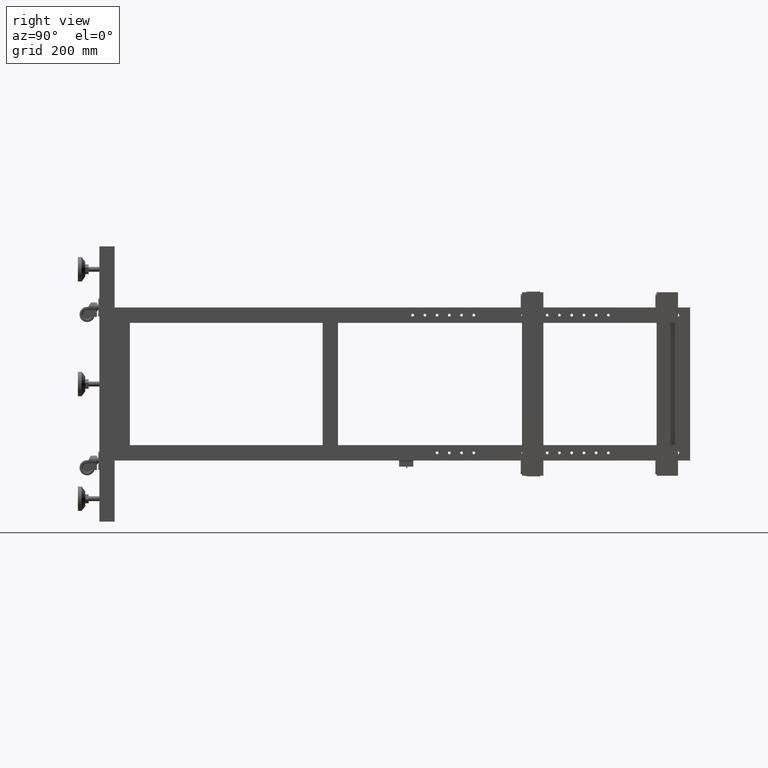
[diagram: clean part render]
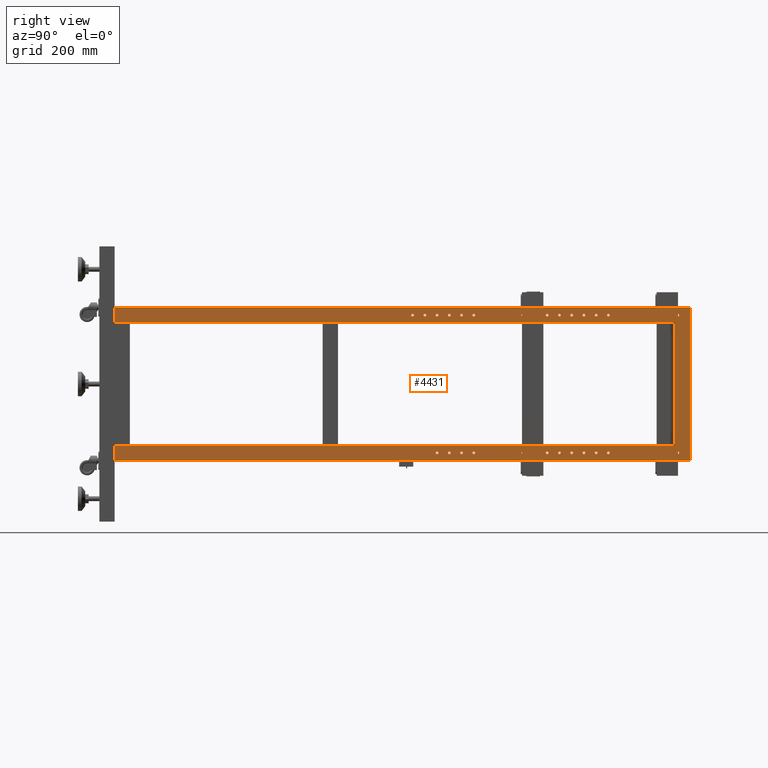
[diagram: same view with one face highlighted and labeled with its STEP entity id]
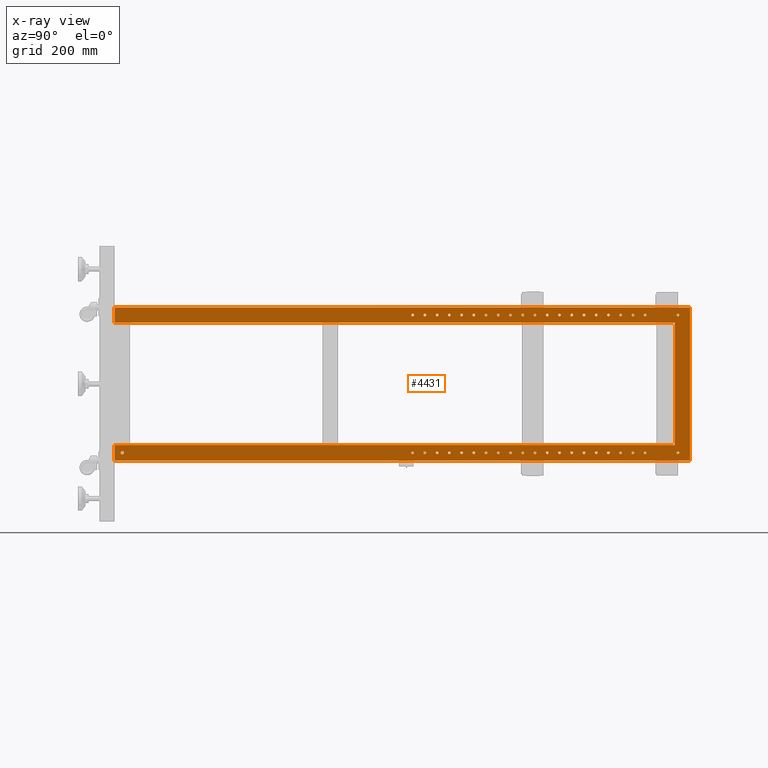
[diagram: x-ray of the same camera — body ghosted, the highlighted face saturated]
A machine part, right view. The second image highlights one B-rep face of the part: STEP entity #4431.
The next image is the same camera in x-ray: the body ghosted, the highlighted face saturated — about 0% of this face is hidden behind the body in this view.
In plain terms, the highlighted planar face has unit normal (1, 0, 0).
Its self-contained STEP definition (entity closure, byte-faithful):
#44 = LINE ( 'NONE', #16511, #4409 ) ;
#164 = AXIS2_PLACEMENT_3D ( 'NONE', #10784, #67361, #14917 ) ;
#175 = ORIENTED_EDGE ( 'NONE', *, *, #20693, .F. ) ;
#234 = EDGE_CURVE ( 'NONE', #19691, #26423, #36086, .T. ) ;
#242 = ORIENTED_EDGE ( 'NONE', *, *, #8785, .F. ) ;
#354 = AXIS2_PLACEMENT_3D ( 'NONE', #33098, #12872, #49875 ) ;
#373 = ORIENTED_EDGE ( 'NONE', *, *, #35066, .F. ) ;
#435 = CARTESIAN_POINT ( 'NONE',  ( -398.1724874371850547, 369.4410804020113233, -220.5000000000000000 ) ) ;
#560 = CARTESIAN_POINT ( 'NONE',  ( -398.1724874371852252, 689.4410804020114938, 224.9999999999985789 ) ) ;
#566 = CIRCLE ( 'NONE', #14834, 4.499999999999948486 ) ;
#605 = VECTOR ( 'NONE', #29479, 1000.000000000000000 ) ;
#653 = CARTESIAN_POINT ( 'NONE',  ( -398.1724874371852252, 729.4410804020113801, -220.5000000000000000 ) ) ;
#674 = FACE_BOUND ( 'NONE', #43274, .T. ) ;
#757 = DIRECTION ( 'NONE',  ( 1.000000000000000000, 2.653611717788262425E-16, -0.000000000000000000 ) ) ;
#942 = CARTESIAN_POINT ( 'NONE',  ( -398.1724874371850547, 369.4410804020113233, -229.5000000000000000 ) ) ;
#961 = DIRECTION ( 'NONE',  ( 1.000000000000000000, 2.653611717788262425E-16, 2.775557561562890365E-16 ) ) ;
#963 = DIRECTION ( 'NONE',  ( -1.224646799147351975E-16, -3.249737096369301782E-32, 1.000000000000000000 ) ) ;
#987 = EDGE_LOOP ( 'NONE', ( #64070, #15882 ) ) ;
#1017 = FACE_BOUND ( 'NONE', #50379, .T. ) ;
#1021 = CARTESIAN_POINT ( 'NONE',  ( -398.1724874371852252, 653.9410804020114938, 224.9999999999983231 ) ) ;
#1193 = CARTESIAN_POINT ( 'NONE',  ( -398.1724874371852252, 809.4410804020113801, -225.0000000000000000 ) ) ;
#1235 = VERTEX_POINT ( 'NONE', #20803 ) ;
#1337 = FACE_BOUND ( 'NONE', #40737, .T. ) ;
#1415 = VERTEX_POINT ( 'NONE', #16338 ) ;
#1514 = DIRECTION ( 'NONE',  ( 1.000000000000000000, 2.653611717788262425E-16, 2.775557561562890365E-16 ) ) ;
#1521 = VERTEX_POINT ( 'NONE', #35378 ) ;
#1590 = CARTESIAN_POINT ( 'NONE',  ( -398.1724874371850547, 289.4410804020112664, -225.0000000000000000 ) ) ;
#1605 = EDGE_CURVE ( 'NONE', #13030, #34455, #44, .T. ) ;
#1649 = CARTESIAN_POINT ( 'NONE',  ( -398.1724874371852252, 449.4410804020113233, -225.0000000000000000 ) ) ;
#1681 = FACE_BOUND ( 'NONE', #40838, .T. ) ;
#1714 = VERTEX_POINT ( 'NONE', #7584 ) ;
#1737 = VERTEX_POINT ( 'NONE', #6889 ) ;
#1755 = AXIS2_PLACEMENT_3D ( 'NONE', #5788, #6131, #63409 ) ;
#1826 = AXIS2_PLACEMENT_3D ( 'NONE', #27871, #6631, #49463 ) ;
#1870 = DIRECTION ( 'NONE',  ( 0.000000000000000000, 1.000000000000000000, 0.000000000000000000 ) ) ;
#2012 = EDGE_CURVE ( 'NONE', #27360, #27692, #21562, .T. ) ;
#2026 = FACE_BOUND ( 'NONE', #40001, .T. ) ;
#2033 = CIRCLE ( 'NONE', #41462, 4.499999999999948486 ) ;
#2055 = CARTESIAN_POINT ( 'NONE',  ( -398.1724874371852252, 569.4410804020113801, -225.0000000000000000 ) ) ;
#2414 = CARTESIAN_POINT ( 'NONE',  ( -398.1724874371843725, 986.4410804020112664, 250.0000000000000000 ) ) ;
#2488 = EDGE_CURVE ( 'NONE', #64352, #4383, #52649, .T. ) ;
#2775 = DIRECTION ( 'NONE',  ( 0.000000000000000000, 0.000000000000000000, -1.000000000000000000 ) ) ;
#2805 = VERTEX_POINT ( 'NONE', #21680 ) ;
#2834 = CARTESIAN_POINT ( 'NONE',  ( -398.1724874371850547, 293.9410804020114369, 224.9999999999957936 ) ) ;
#2897 = AXIS2_PLACEMENT_3D ( 'NONE', #16755, #53788, #37997 ) ;
#2968 = EDGE_CURVE ( 'NONE', #12359, #26931, #4313, .T. ) ;
#2987 = VERTEX_POINT ( 'NONE', #8624 ) ;
#3004 = DIRECTION ( 'NONE',  ( 1.000000000000000000, 2.653611717788262425E-16, 2.775557561562895295E-16 ) ) ;
#3051 = CARTESIAN_POINT ( 'NONE',  ( -398.1724874371852252, 569.4410804020113801, -229.5000000000000000 ) ) ;
#3078 = CIRCLE ( 'NONE', #64425, 4.500000000000059508 ) ;
#3099 = DIRECTION ( 'NONE',  ( -0.000000000000000000, 0.000000000000000000, -1.000000000000000000 ) ) ;
#3183 = EDGE_CURVE ( 'NONE', #2987, #23716, #19587, .T. ) ;
#3250 = CARTESIAN_POINT ( 'NONE',  ( -398.1724874371850547, 244.9410804020114369, 224.9999999999955094 ) ) ;
#3304 = CIRCLE ( 'NONE', #29602, 4.500000000000003553 ) ;
#3307 = ORIENTED_EDGE ( 'NONE', *, *, #32122, .F. ) ;
#3316 = DIRECTION ( 'NONE',  ( 1.000000000000000000, 2.653611717788262425E-16, -0.000000000000000000 ) ) ;
#3400 = CARTESIAN_POINT ( 'NONE',  ( -398.1724874371843725, 986.4410804020112664, 248.0000000000000000 ) ) ;
#3462 = CARTESIAN_POINT ( 'NONE',  ( -398.1724874371852252, 729.4410804020113801, -225.0000000000000000 ) ) ;
#3606 = DIRECTION ( 'NONE',  ( 0.000000000000000000, 1.000000000000000000, 0.000000000000000000 ) ) ;
#3716 = EDGE_CURVE ( 'NONE', #56223, #10104, #65354, .T. ) ;
#3802 = DIRECTION ( 'NONE',  ( 1.000000000000000000, 2.653611717788262425E-16, 2.775557561562895295E-16 ) ) ;
#3820 = EDGE_LOOP ( 'NONE', ( #7298, #19768 ) ) ;
#3903 = DIRECTION ( 'NONE',  ( 0.000000000000000000, 1.000000000000000000, 0.000000000000000000 ) ) ;
#3909 = DIRECTION ( 'NONE',  ( 0.000000000000000000, 0.000000000000000000, -1.000000000000000000 ) ) ;
#3961 = CARTESIAN_POINT ( 'NONE',  ( -398.1724874371850547, 209.4410804020113517, -225.0000000000000000 ) ) ;
#4083 = EDGE_LOOP ( 'NONE', ( #46058, #55019 ) ) ;
#4172 = DIRECTION ( 'NONE',  ( 0.000000000000000000, 0.000000000000000000, -1.000000000000000000 ) ) ;
#4182 = CARTESIAN_POINT ( 'NONE',  ( -398.1724874371850547, 409.4410804020112664, -220.5000000000000000 ) ) ;
#4198 = CARTESIAN_POINT ( 'NONE',  ( -398.1724874371852252, 689.4410804020114938, 224.9999999999985789 ) ) ;
#4250 = ORIENTED_EDGE ( 'NONE', *, *, #18227, .F. ) ;
#4313 = CIRCLE ( 'NONE', #45912, 4.499999999999893419 ) ;
#4326 = CARTESIAN_POINT ( 'NONE',  ( -398.1724874371852252, 533.9410804020113801, 224.9999999999974705 ) ) ;
#4334 = EDGE_CURVE ( 'NONE', #61675, #45697, #21677, .T. ) ;
#4383 = VERTEX_POINT ( 'NONE', #52824 ) ;
#4394 = ORIENTED_EDGE ( 'NONE', *, *, #46214, .F. ) ;
#4409 = VECTOR ( 'NONE', #36397, 1000.000000000000000 ) ;
#4431 = ADVANCED_FACE ( 'NONE', ( #32573, #2026, #22963, #1681, #6179, #53494, #43879, #43189, #64791, #63782, #28451, #7544, #63455, #21606, #54171, #6851, #33579, #17141, #38727, #7197, #22617, #27096, #38045, #59307, #33242, #38387, #1337, #1017, #17816, #59649, #58973, #12677, #49015, #674, #47991, #16472, #54515, #37363, #32238, #53834, #58295, #37700, #42527, #12005 ), #16797, .T. ) ;
#4557 = CIRCLE ( 'NONE', #59279, 4.500000000000003553 ) ;
#4587 = CARTESIAN_POINT ( 'NONE',  ( -398.1724874371843725, 1036.441080402011494, 250.0000000000000000 ) ) ;
#4699 = VERTEX_POINT ( 'NONE', #38644 ) ;
#4810 = ORIENTED_EDGE ( 'NONE', *, *, #2488, .F. ) ;
#4921 = VERTEX_POINT ( 'NONE', #49600 ) ;
#4951 = EDGE_CURVE ( 'NONE', #20281, #61514, #8578, .T. ) ;
#5000 = CIRCLE ( 'NONE', #38963, 4.500000000000059508 ) ;
#5103 = DIRECTION ( 'NONE',  ( 0.000000000000000000, 1.000000000000000000, 0.000000000000000000 ) ) ;
#5172 = DIRECTION ( 'NONE',  ( 1.000000000000000000, 2.653611717788262425E-16, -0.000000000000000000 ) ) ;
#5250 = ORIENTED_EDGE ( 'NONE', *, *, #28369, .F. ) ;
#5282 = VERTEX_POINT ( 'NONE', #40845 ) ;
#5323 = EDGE_CURVE ( 'NONE', #64919, #34358, #2033, .T. ) ;
#5584 = DIRECTION ( 'NONE',  ( 0.000000000000000000, 1.000000000000000000, 0.000000000000000000 ) ) ;
#5586 = ORIENTED_EDGE ( 'NONE', *, *, #2012, .F. ) ;
#5675 = CARTESIAN_POINT ( 'NONE',  ( -398.1724874371850547, 209.4410804020113517, -229.5000000000000000 ) ) ;
#5716 = EDGE_CURVE ( 'NONE', #29141, #52002, #28392, .T. ) ;
#5788 = CARTESIAN_POINT ( 'NONE',  ( -398.1724874371852252, 449.4410804020114369, 224.9999999999969020 ) ) ;
#5859 = DIRECTION ( 'NONE',  ( 1.000000000000000000, 2.653611717788262425E-16, 2.775557561562890365E-16 ) ) ;
#6052 = CARTESIAN_POINT ( 'NONE',  ( -398.1724874371850547, 209.4410804020113517, -225.0000000000000000 ) ) ;
#6081 = CARTESIAN_POINT ( 'NONE',  ( -398.1724874371852252, 489.4410804020113233, -229.5000000000000000 ) ) ;
#6107 = CIRCLE ( 'NONE', #58686, 4.500000000000003553 ) ;
#6131 = DIRECTION ( 'NONE',  ( 1.000000000000000000, 2.653611717788262425E-16, -0.000000000000000000 ) ) ;
#6179 = FACE_BOUND ( 'NONE', #53772, .T. ) ;
#6194 = CARTESIAN_POINT ( 'NONE',  ( -398.1724874371848273, -844.5589195979887336, -250.0000000000000000 ) ) ;
#6225 = CARTESIAN_POINT ( 'NONE',  ( -398.1724874371841452, 996.4410804020114938, -225.0000000000000000 ) ) ;
#6228 = CIRCLE ( 'NONE', #16058, 4.500000000000003553 ) ;
#6416 = ORIENTED_EDGE ( 'NONE', *, *, #37461, .F. ) ;
#6494 = EDGE_CURVE ( 'NONE', #64155, #17106, #17741, .T. ) ;
#6571 = EDGE_LOOP ( 'NONE', ( #42539, #57878 ) ) ;
#6631 = DIRECTION ( 'NONE',  ( 1.000000000000000000, 2.653611717788262425E-16, 2.775557561562890365E-16 ) ) ;
#6643 = DIRECTION ( 'NONE',  ( 1.000000000000000000, 2.653611717788262425E-16, 2.775557561562890365E-16 ) ) ;
#6726 = EDGE_LOOP ( 'NONE', ( #23196, #66642 ) ) ;
#6830 = VERTEX_POINT ( 'NONE', #34524 ) ;
#6851 = FACE_BOUND ( 'NONE', #41286, .T. ) ;
#6889 = CARTESIAN_POINT ( 'NONE',  ( -398.1724874371850547, 129.4410804020113801, -229.5000000000000000 ) ) ;
#6910 = EDGE_LOOP ( 'NONE', ( #17938, #62868 ) ) ;
#6924 = CARTESIAN_POINT ( 'NONE',  ( -398.1724874371843725, 1036.441080402011494, -250.0000000000000000 ) ) ;
#7039 = DIRECTION ( 'NONE',  ( 0.000000000000000000, 0.000000000000000000, -1.000000000000000000 ) ) ;
#7197 = FACE_BOUND ( 'NONE', #6726, .T. ) ;
#7204 = EDGE_CURVE ( 'NONE', #56518, #20771, #13480, .T. ) ;
#7298 = ORIENTED_EDGE ( 'NONE', *, *, #4951, .F. ) ;
#7362 = DIRECTION ( 'NONE',  ( 0.000000000000000000, 1.000000000000000000, 0.000000000000000000 ) ) ;
#7446 = CIRCLE ( 'NONE', #59967, 4.500000000000059508 ) ;
#7544 = FACE_BOUND ( 'NONE', #6571, .T. ) ;
#7584 = CARTESIAN_POINT ( 'NONE',  ( -398.1724874371852252, 804.9410804020113801, 224.9999999999994316 ) ) ;
#7690 = EDGE_LOOP ( 'NONE', ( #56061, #15416 ) ) ;
#7727 = LINE ( 'NONE', #28629, #56284 ) ;
#7744 = CARTESIAN_POINT ( 'NONE',  ( -398.1724874371850547, 413.9410804020114369, 224.9999999999966178 ) ) ;
#7838 = DIRECTION ( 'NONE',  ( 0.000000000000000000, 1.000000000000000000, 0.000000000000000000 ) ) ;
#7853 = EDGE_CURVE ( 'NONE', #38825, #26167, #21208, .T. ) ;
#7890 = EDGE_LOOP ( 'NONE', ( #6416, #66790 ) ) ;
#7965 = CARTESIAN_POINT ( 'NONE',  ( -398.1724874371852252, 884.9410804020114938, 224.9999999999999716 ) ) ;
#8058 = EDGE_CURVE ( 'NONE', #61514, #20281, #44222, .T. ) ;
#8063 = EDGE_CURVE ( 'NONE', #63650, #31419, #24540, .T. ) ;
#8090 = DIRECTION ( 'NONE',  ( 0.000000000000000000, 1.000000000000000000, 0.000000000000000000 ) ) ;
#8166 = ORIENTED_EDGE ( 'NONE', *, *, #19993, .F. ) ;
#8226 = EDGE_CURVE ( 'NONE', #49736, #1737, #55191, .T. ) ;
#8262 = CARTESIAN_POINT ( 'NONE',  ( -398.1724874371848273, -844.5589195979886199, 199.9999999999999716 ) ) ;
#8346 = CARTESIAN_POINT ( 'NONE',  ( -398.1724874371852252, 809.4410804020113801, -229.5000000000000000 ) ) ;
#8453 = VERTEX_POINT ( 'NONE', #7744 ) ;
#8578 = CIRCLE ( 'NONE', #10775, 4.500000000000003553 ) ;
#8624 = CARTESIAN_POINT ( 'NONE',  ( -398.1724874371852252, 613.9410804020114938, 224.9999999999980389 ) ) ;
#8635 = DIRECTION ( 'NONE',  ( 0.000000000000000000, 0.000000000000000000, -1.000000000000000000 ) ) ;
#8654 = CARTESIAN_POINT ( 'NONE',  ( -398.1724874371850547, 333.9410804020113801, 224.9999999999960778 ) ) ;
#8785 = EDGE_CURVE ( 'NONE', #64779, #1521, #50871, .T. ) ;
#8817 = CARTESIAN_POINT ( 'NONE',  ( -398.1724874371852252, 489.4410804020113801, 224.9999999999971863 ) ) ;
#8849 = CARTESIAN_POINT ( 'NONE',  ( -398.1724874371850547, 329.4410804020113233, -225.0000000000000000 ) ) ;
#8904 = EDGE_LOOP ( 'NONE', ( #61288, #27285 ) ) ;
#9010 = EDGE_CURVE ( 'NONE', #9892, #45892, #55290, .T. ) ;
#9020 = CARTESIAN_POINT ( 'NONE',  ( -398.1724874371850547, 284.9410804020114369, 224.9999999999957936 ) ) ;
#9123 = ORIENTED_EDGE ( 'NONE', *, *, #1605, .F. ) ;
#9259 = EDGE_CURVE ( 'NONE', #37291, #1714, #36673, .T. ) ;
#9343 = ORIENTED_EDGE ( 'NONE', *, *, #51111, .F. ) ;
#9539 = AXIS2_PLACEMENT_3D ( 'NONE', #67659, #57059, #42618 ) ;
#9688 = DIRECTION ( 'NONE',  ( 0.000000000000000000, 0.000000000000000000, -1.000000000000000000 ) ) ;
#9777 = CARTESIAN_POINT ( 'NONE',  ( -398.1724874371852252, 529.4410804020113801, -220.5000000000000000 ) ) ;
#9892 = VERTEX_POINT ( 'NONE', #27238 ) ;
#10089 = DIRECTION ( 'NONE',  ( -2.653611717788262425E-16, 1.000000000000000000, 0.000000000000000000 ) ) ;
#10104 = VERTEX_POINT ( 'NONE', #48807 ) ;
#10145 = ORIENTED_EDGE ( 'NONE', *, *, #12234, .F. ) ;
#10267 = VERTEX_POINT ( 'NONE', #65021 ) ;
#10441 = EDGE_LOOP ( 'NONE', ( #41249, #5586, #39090, #26698, #40694, #16023, #9123, #37065 ) ) ;
#10652 = CARTESIAN_POINT ( 'NONE',  ( -398.1724874371852252, 649.4410804020113801, 224.9999999999983231 ) ) ;
#10775 = AXIS2_PLACEMENT_3D ( 'NONE', #51216, #25497, #44465 ) ;
#10784 = CARTESIAN_POINT ( 'NONE',  ( -398.1724874371850547, 249.4410804020113801, 224.9999999999955094 ) ) ;
#10880 = DIRECTION ( 'NONE',  ( -1.000000000000000000, -2.653611717788262425E-16, -1.224646799147353947E-16 ) ) ;
#10995 = VERTEX_POINT ( 'NONE', #43594 ) ;
#11019 = CARTESIAN_POINT ( 'NONE',  ( -398.1724874371850547, 209.4410804020114654, 224.9999999999952252 ) ) ;
#11068 = EDGE_LOOP ( 'NONE', ( #21518, #30629 ) ) ;
#11101 = CIRCLE ( 'NONE', #57081, 4.499999999999948486 ) ;
#11317 = CARTESIAN_POINT ( 'NONE',  ( -398.1724874371848273, -844.5589195979887336, -250.0000000000000000 ) ) ;
#11337 = CARTESIAN_POINT ( 'NONE',  ( -398.1724874371850547, 369.4410804020113233, -225.0000000000000000 ) ) ;
#11386 = AXIS2_PLACEMENT_3D ( 'NONE', #56739, #24495, #3909 ) ;
#11392 = EDGE_LOOP ( 'NONE', ( #29788, #38645 ) ) ;
#11504 = CARTESIAN_POINT ( 'NONE',  ( -398.1724874371852252, 689.4410804020113801, -225.0000000000000000 ) ) ;
#11519 = EDGE_CURVE ( 'NONE', #62609, #28546, #42079, .T. ) ;
#11558 = EDGE_CURVE ( 'NONE', #10104, #56223, #55253, .T. ) ;
#11617 = DIRECTION ( 'NONE',  ( 0.000000000000000000, 0.000000000000000000, 1.000000000000000000 ) ) ;
#11725 = DIRECTION ( 'NONE',  ( 1.000000000000000000, 2.653611717788262425E-16, -0.000000000000000000 ) ) ;
#11748 = CARTESIAN_POINT ( 'NONE',  ( -398.1724874371850547, 169.4410804020112948, -225.0000000000000000 ) ) ;
#11829 = ORIENTED_EDGE ( 'NONE', *, *, #57080, .T. ) ;
#11961 = DIRECTION ( 'NONE',  ( 0.000000000000000000, 1.000000000000000000, 0.000000000000000000 ) ) ;
#12005 = FACE_BOUND ( 'NONE', #34402, .T. ) ;
#12234 = EDGE_CURVE ( 'NONE', #27352, #35424, #25732, .T. ) ;
#12296 = CARTESIAN_POINT ( 'NONE',  ( -398.1724874371852252, 529.4410804020113801, -225.0000000000000000 ) ) ;
#12359 = VERTEX_POINT ( 'NONE', #18228 ) ;
#12504 = CARTESIAN_POINT ( 'NONE',  ( -398.1724874371841452, 996.4410804020114938, 224.9999999999999716 ) ) ;
#12516 = EDGE_LOOP ( 'NONE', ( #5250, #63568 ) ) ;
#12556 = CARTESIAN_POINT ( 'NONE',  ( -398.1724874371850547, 364.9410804020113801, 224.9999999999963336 ) ) ;
#12603 = EDGE_CURVE ( 'NONE', #1415, #30443, #49845, .T. ) ;
#12630 = DIRECTION ( 'NONE',  ( 0.000000000000000000, 0.000000000000000000, -1.000000000000000000 ) ) ;
#12677 = FACE_BOUND ( 'NONE', #63724, .T. ) ;
#12805 = DIRECTION ( 'NONE',  ( 0.000000000000000000, 0.000000000000000000, -1.000000000000000000 ) ) ;
#12872 = DIRECTION ( 'NONE',  ( 1.000000000000000000, 2.653611717788262425E-16, 2.775557561562890365E-16 ) ) ;
#12909 = CARTESIAN_POINT ( 'NONE',  ( -398.1724874371852252, 849.4410804020113801, -225.0000000000000000 ) ) ;
#12946 = EDGE_CURVE ( 'NONE', #26931, #12359, #29161, .T. ) ;
#12984 = DIRECTION ( 'NONE',  ( 1.000000000000000000, 2.653611717788262425E-16, 2.775557561562890365E-16 ) ) ;
#12995 = EDGE_CURVE ( 'NONE', #5282, #39974, #48817, .T. ) ;
#13024 = EDGE_LOOP ( 'NONE', ( #4810, #9343 ) ) ;
#13030 = VERTEX_POINT ( 'NONE', #21854 ) ;
#13037 = EDGE_CURVE ( 'NONE', #26423, #19691, #19277, .T. ) ;
#13061 = DIRECTION ( 'NONE',  ( 2.653611717788262425E-16, -1.000000000000000000, 0.000000000000000000 ) ) ;
#13063 = CARTESIAN_POINT ( 'NONE',  ( -398.1724874371852252, 809.4410804020114938, 224.9999999999994316 ) ) ;
#13088 = DIRECTION ( 'NONE',  ( 0.000000000000000000, 1.000000000000000000, 0.000000000000000000 ) ) ;
#13170 = CARTESIAN_POINT ( 'NONE',  ( -398.1724874371852252, 729.4410804020113801, 224.9999999999988631 ) ) ;
#13302 = CARTESIAN_POINT ( 'NONE',  ( -398.1724874371852252, 489.4410804020113233, -225.0000000000000000 ) ) ;
#13480 = CIRCLE ( 'NONE', #354, 4.500000000000003553 ) ;
#13643 = EDGE_CURVE ( 'NONE', #52716, #36010, #35806, .T. ) ;
#13704 = LINE ( 'NONE', #3400, #605 ) ;
#13806 = EDGE_CURVE ( 'NONE', #22030, #35533, #52223, .T. ) ;
#13914 = CIRCLE ( 'NONE', #32555, 5.500000000000087930 ) ;
#14479 = AXIS2_PLACEMENT_3D ( 'NONE', #1649, #38008, #17782 ) ;
#14679 = AXIS2_PLACEMENT_3D ( 'NONE', #13302, #23928, #44842 ) ;
#14721 = CIRCLE ( 'NONE', #53042, 4.500000000000059508 ) ;
#14834 = AXIS2_PLACEMENT_3D ( 'NONE', #560, #43081, #37262 ) ;
#14903 = CARTESIAN_POINT ( 'NONE',  ( -398.1724874371850547, 173.9410804020113801, 224.9999999999949409 ) ) ;
#14917 = DIRECTION ( 'NONE',  ( 0.000000000000000000, 1.000000000000000000, 0.000000000000000000 ) ) ;
#14942 = DIRECTION ( 'NONE',  ( 0.000000000000000000, 1.000000000000000000, 0.000000000000000000 ) ) ;
#14970 = CARTESIAN_POINT ( 'NONE',  ( -398.1724874371852252, 889.4410804020113801, -225.0000000000000000 ) ) ;
#15028 = CARTESIAN_POINT ( 'NONE',  ( -398.1724874371852252, 889.4410804020113801, 224.9999999999999716 ) ) ;
#15156 = DIRECTION ( 'NONE',  ( 1.000000000000000000, 2.653611717788262425E-16, 2.775557561562890365E-16 ) ) ;
#15316 = AXIS2_PLACEMENT_3D ( 'NONE', #65891, #1514, #43364 ) ;
#15368 = EDGE_CURVE ( 'NONE', #60659, #57063, #56826, .T. ) ;
#15416 = ORIENTED_EDGE ( 'NONE', *, *, #234, .F. ) ;
#15420 = CARTESIAN_POINT ( 'NONE',  ( -398.1724874371848273, -844.5589195979887336, -250.0000000000000000 ) ) ;
#15433 = EDGE_LOOP ( 'NONE', ( #17322, #175 ) ) ;
#15707 = CIRCLE ( 'NONE', #16832, 4.500000000000003553 ) ;
#15745 = CIRCLE ( 'NONE', #35452, 4.499999999999948486 ) ;
#15816 = ORIENTED_EDGE ( 'NONE', *, *, #16671, .F. ) ;
#15817 = AXIS2_PLACEMENT_3D ( 'NONE', #34673, #3802, #51476 ) ;
#15882 = ORIENTED_EDGE ( 'NONE', *, *, #46618, .F. ) ;
#15973 = ORIENTED_EDGE ( 'NONE', *, *, #51341, .F. ) ;
#15990 = AXIS2_PLACEMENT_3D ( 'NONE', #1590, #32148, #53066 ) ;
#15995 = CARTESIAN_POINT ( 'NONE',  ( -398.1724874371850547, 324.9410804020113801, 224.9999999999960778 ) ) ;
#16023 = ORIENTED_EDGE ( 'NONE', *, *, #58455, .T. ) ;
#16058 = AXIS2_PLACEMENT_3D ( 'NONE', #51095, #45949, #52123 ) ;
#16237 = EDGE_CURVE ( 'NONE', #64734, #6830, #50745, .T. ) ;
#16256 = CIRCLE ( 'NONE', #60056, 4.500000000000059508 ) ;
#16311 = AXIS2_PLACEMENT_3D ( 'NONE', #41507, #41165, #40825 ) ;
#16338 = CARTESIAN_POINT ( 'NONE',  ( -398.1724874371850547, 133.9410804020114369, 224.9999999999946851 ) ) ;
#16465 = DIRECTION ( 'NONE',  ( 1.000000000000000000, 2.653611717788262425E-16, -0.000000000000000000 ) ) ;
#16472 = FACE_BOUND ( 'NONE', #7690, .T. ) ;
#16491 = DIRECTION ( 'NONE',  ( 0.000000000000000000, 0.000000000000000000, -1.000000000000000000 ) ) ;
#16511 = CARTESIAN_POINT ( 'NONE',  ( -398.1724874371852252, 986.4410804020139949, 199.9999999999999716 ) ) ;
#16537 = VERTEX_POINT ( 'NONE', #32201 ) ;
#16562 = CARTESIAN_POINT ( 'NONE',  ( -398.1724874371850547, 289.4410804020112664, -229.5000000000000000 ) ) ;
#16593 = EDGE_CURVE ( 'NONE', #63022, #64734, #21571, .T. ) ;
#16671 = EDGE_CURVE ( 'NONE', #28546, #62609, #16767, .T. ) ;
#16755 = CARTESIAN_POINT ( 'NONE',  ( -398.1724874371852252, 489.4410804020113233, -225.0000000000000000 ) ) ;
#16767 = CIRCLE ( 'NONE', #37553, 4.499999999999893419 ) ;
#16797 = PLANE ( 'NONE',  #56701 ) ;
#16832 = AXIS2_PLACEMENT_3D ( 'NONE', #14970, #40337, #50963 ) ;
#16888 = ORIENTED_EDGE ( 'NONE', *, *, #19991, .F. ) ;
#16986 = DIRECTION ( 'NONE',  ( 1.000000000000000000, 2.653611717788262425E-16, 2.775557561562890365E-16 ) ) ;
#17096 = DIRECTION ( 'NONE',  ( 1.000000000000000000, 2.653611717788262425E-16, -0.000000000000000000 ) ) ;
#17106 = VERTEX_POINT ( 'NONE', #12556 ) ;
#17141 = FACE_BOUND ( 'NONE', #3820, .T. ) ;
#17144 = DIRECTION ( 'NONE',  ( 1.000000000000000000, 2.653611717788262425E-16, -0.000000000000000000 ) ) ;
#17191 = CARTESIAN_POINT ( 'NONE',  ( -398.1724874371852252, 444.9410804020114369, 224.9999999999969020 ) ) ;
#17322 = ORIENTED_EDGE ( 'NONE', *, *, #67834, .F. ) ;
#17469 = DIRECTION ( 'NONE',  ( 0.000000000000000000, 1.000000000000000000, 0.000000000000000000 ) ) ;
#17541 = CIRCLE ( 'NONE', #26310, 4.500000000000003553 ) ;
#17543 = EDGE_CURVE ( 'NONE', #64710, #47311, #22332, .T. ) ;
#17611 = EDGE_LOOP ( 'NONE', ( #37132, #50544 ) ) ;
#17615 = CARTESIAN_POINT ( 'NONE',  ( -398.1724874371852252, 764.9410804020114938, 224.9999999999991473 ) ) ;
#17660 = DIRECTION ( 'NONE',  ( 1.000000000000000000, 2.653611717788262425E-16, -0.000000000000000000 ) ) ;
#17671 = ORIENTED_EDGE ( 'NONE', *, *, #66265, .F. ) ;
#17708 = DIRECTION ( 'NONE',  ( 0.000000000000000000, 1.000000000000000000, 0.000000000000000000 ) ) ;
#17733 = EDGE_CURVE ( 'NONE', #18614, #44434, #15745, .T. ) ;
#17741 = CIRCLE ( 'NONE', #65952, 4.500000000000059508 ) ;
#17748 = VERTEX_POINT ( 'NONE', #50888 ) ;
#17777 = DIRECTION ( 'NONE',  ( 1.000000000000000000, 2.653611717788262425E-16, 2.775557561562890365E-16 ) ) ;
#17782 = DIRECTION ( 'NONE',  ( 0.000000000000000000, 0.000000000000000000, -1.000000000000000000 ) ) ;
#17816 = FACE_BOUND ( 'NONE', #15433, .T. ) ;
#17910 = VERTEX_POINT ( 'NONE', #59750 ) ;
#17938 = ORIENTED_EDGE ( 'NONE', *, *, #23554, .F. ) ;
#18009 = AXIS2_PLACEMENT_3D ( 'NONE', #63458, #17144, #27441 ) ;
#18172 = DIRECTION ( 'NONE',  ( 0.000000000000000000, 0.000000000000000000, -1.000000000000000000 ) ) ;
#18227 = EDGE_CURVE ( 'NONE', #17910, #25209, #14721, .T. ) ;
#18228 = CARTESIAN_POINT ( 'NONE',  ( -398.1724874371850547, 289.4410804020112664, -220.5000000000000000 ) ) ;
#18426 = DIRECTION ( 'NONE',  ( 1.000000000000000000, 2.653611717788262425E-16, 2.775557561562890365E-16 ) ) ;
#18453 = CARTESIAN_POINT ( 'NONE',  ( -398.1724874371852252, 769.4410804020113801, -225.0000000000000000 ) ) ;
#18466 = DIRECTION ( 'NONE',  ( 0.000000000000000000, 0.000000000000000000, -1.000000000000000000 ) ) ;
#18539 = CARTESIAN_POINT ( 'NONE',  ( -398.1724874371852252, 524.9410804020114938, 224.9999999999974705 ) ) ;
#18556 = AXIS2_PLACEMENT_3D ( 'NONE', #66489, #40092, #45909 ) ;
#18614 = VERTEX_POINT ( 'NONE', #25346 ) ;
#18625 = CARTESIAN_POINT ( 'NONE',  ( -398.1724874371850547, 249.4410804020113801, -225.0000000000000000 ) ) ;
#18925 = CARTESIAN_POINT ( 'NONE',  ( -398.1724874371852252, 889.4410804020113801, 224.9999999999999716 ) ) ;
#19024 = AXIS2_PLACEMENT_3D ( 'NONE', #26768, #47657, #32911 ) ;
#19277 = CIRCLE ( 'NONE', #57596, 4.499999999999948486 ) ;
#19362 = CIRCLE ( 'NONE', #25920, 4.499999999999948486 ) ;
#19405 = CARTESIAN_POINT ( 'NONE',  ( -398.1724874371852252, 529.4410804020113801, -225.0000000000000000 ) ) ;
#19587 = CIRCLE ( 'NONE', #16311, 4.499999999999948486 ) ;
#19691 = VERTEX_POINT ( 'NONE', #18539 ) ;
#19768 = ORIENTED_EDGE ( 'NONE', *, *, #8058, .F. ) ;
#19822 = CIRCLE ( 'NONE', #58147, 4.500000000000003553 ) ;
#19826 = EDGE_CURVE ( 'NONE', #21640, #16537, #60917, .T. ) ;
#19838 = CARTESIAN_POINT ( 'NONE',  ( -398.1724874371850547, 213.9410804020114085, 224.9999999999952252 ) ) ;
#19916 = EDGE_CURVE ( 'NONE', #44434, #18614, #19362, .T. ) ;
#19926 = DIRECTION ( 'NONE',  ( 0.000000000000000000, 1.000000000000000000, 0.000000000000000000 ) ) ;
#19936 = ORIENTED_EDGE ( 'NONE', *, *, #8226, .F. ) ;
#19991 = EDGE_CURVE ( 'NONE', #16537, #21640, #62048, .T. ) ;
#19993 = EDGE_CURVE ( 'NONE', #31419, #63650, #46713, .T. ) ;
#20016 = VERTEX_POINT ( 'NONE', #44169 ) ;
#20081 = CARTESIAN_POINT ( 'NONE',  ( -398.1724874371852252, 569.4410804020114938, 224.9999999999977547 ) ) ;
#20100 = CIRCLE ( 'NONE', #49656, 4.500000000000003553 ) ;
#20140 = CARTESIAN_POINT ( 'NONE',  ( -398.1724874371852252, 769.4410804020113801, -229.5000000000000000 ) ) ;
#20147 = AXIS2_PLACEMENT_3D ( 'NONE', #45848, #60959, #66772 ) ;
#20281 = VERTEX_POINT ( 'NONE', #20140 ) ;
#20339 = ORIENTED_EDGE ( 'NONE', *, *, #12946, .F. ) ;
#20423 = ORIENTED_EDGE ( 'NONE', *, *, #2968, .F. ) ;
#20581 = DIRECTION ( 'NONE',  ( 1.000000000000000000, 2.653611717788262425E-16, -0.000000000000000000 ) ) ;
#20693 = EDGE_CURVE ( 'NONE', #38384, #17748, #41778, .T. ) ;
#20717 = LINE ( 'NONE', #41630, #28977 ) ;
#20771 = VERTEX_POINT ( 'NONE', #59105 ) ;
#20803 = CARTESIAN_POINT ( 'NONE',  ( -398.1724874371852252, 986.4410804020139949, -200.0000000000000284 ) ) ;
#20898 = CARTESIAN_POINT ( 'NONE',  ( -398.1724874371852252, 609.4410804020113801, -225.0000000000000000 ) ) ;
#20928 = CARTESIAN_POINT ( 'NONE',  ( -398.1724874371850547, 329.4410804020114369, 224.9999999999960778 ) ) ;
#20944 = EDGE_CURVE ( 'NONE', #1521, #64779, #51677, .T. ) ;
#20998 = EDGE_LOOP ( 'NONE', ( #21841, #66223 ) ) ;
#21076 = ORIENTED_EDGE ( 'NONE', *, *, #24986, .F. ) ;
#21166 = ORIENTED_EDGE ( 'NONE', *, *, #7853, .F. ) ;
#21196 = CARTESIAN_POINT ( 'NONE',  ( -398.1724874371852252, 809.4410804020113801, -225.0000000000000000 ) ) ;
#21208 = CIRCLE ( 'NONE', #24491, 4.500000000000003553 ) ;
#21220 = CARTESIAN_POINT ( 'NONE',  ( -398.1724874371852252, 849.4410804020114938, 224.9999999999996874 ) ) ;
#21225 = EDGE_CURVE ( 'NONE', #39974, #5282, #50581, .T. ) ;
#21518 = ORIENTED_EDGE ( 'NONE', *, *, #9259, .F. ) ;
#21562 = LINE ( 'NONE', #15420, #48110 ) ;
#21571 = LINE ( 'NONE', #22923, #42995 ) ;
#21606 = FACE_BOUND ( 'NONE', #12516, .T. ) ;
#21640 = VERTEX_POINT ( 'NONE', #17191 ) ;
#21675 = AXIS2_PLACEMENT_3D ( 'NONE', #29422, #55832, #23256 ) ;
#21677 = CIRCLE ( 'NONE', #40279, 4.499999999999948486 ) ;
#21680 = CARTESIAN_POINT ( 'NONE',  ( -398.1724874371852252, 609.4410804020113801, -220.5000000000000000 ) ) ;
#21795 = CARTESIAN_POINT ( 'NONE',  ( -398.1724874371850547, 209.4410804020114654, 224.9999999999952252 ) ) ;
#21825 = DIRECTION ( 'NONE',  ( 1.000000000000000000, 2.653611717788262425E-16, -0.000000000000000000 ) ) ;
#21841 = ORIENTED_EDGE ( 'NONE', *, *, #32834, .F. ) ;
#21854 = CARTESIAN_POINT ( 'NONE',  ( -398.1724874371843725, 986.4410804020112664, 199.9999999999999716 ) ) ;
#21943 = DIRECTION ( 'NONE',  ( 1.000000000000000000, 2.653611717788262425E-16, 1.224646799147351975E-16 ) ) ;
#21968 = DIRECTION ( 'NONE',  ( 0.000000000000000000, 0.000000000000000000, -1.000000000000000000 ) ) ;
#22007 = CARTESIAN_POINT ( 'NONE',  ( -398.1724874371848273, -819.5589195979885062, -230.5000000000000000 ) ) ;
#22030 = VERTEX_POINT ( 'NONE', #42153 ) ;
#22096 = AXIS2_PLACEMENT_3D ( 'NONE', #28225, #44338, #12805 ) ;
#22165 = CARTESIAN_POINT ( 'NONE',  ( -398.1724874371852252, 529.4410804020113801, -229.5000000000000000 ) ) ;
#22190 = CIRCLE ( 'NONE', #25485, 4.499999999999948486 ) ;
#22332 = CIRCLE ( 'NONE', #58467, 4.500000000000003553 ) ;
#22347 = EDGE_CURVE ( 'NONE', #10995, #55234, #566, .T. ) ;
#22462 = DIRECTION ( 'NONE',  ( 0.000000000000000000, 0.000000000000000000, -1.000000000000000000 ) ) ;
#22499 = DIRECTION ( 'NONE',  ( 0.000000000000000000, 0.000000000000000000, 1.000000000000000000 ) ) ;
#22563 = AXIS2_PLACEMENT_3D ( 'NONE', #20898, #32535, #48979 ) ;
#22570 = DIRECTION ( 'NONE',  ( 1.000000000000000000, 2.653611717788262425E-16, -0.000000000000000000 ) ) ;
#22617 = FACE_BOUND ( 'NONE', #55096, .T. ) ;
#22798 = ORIENTED_EDGE ( 'NONE', *, *, #41730, .F. ) ;
#22882 = DIRECTION ( 'NONE',  ( 0.000000000000000000, 0.000000000000000000, -1.000000000000000000 ) ) ;
#22894 = CIRCLE ( 'NONE', #62319, 4.500000000000059508 ) ;
#22923 = CARTESIAN_POINT ( 'NONE',  ( -398.1724874371843725, 1036.441080402011494, 248.0000000000000000 ) ) ;
#22947 = DIRECTION ( 'NONE',  ( 1.000000000000000000, 2.653611717788262425E-16, 2.775557561562890365E-16 ) ) ;
#22963 = FACE_BOUND ( 'NONE', #34067, .T. ) ;
#23167 = DIRECTION ( 'NONE',  ( 0.000000000000000000, 0.000000000000000000, -1.000000000000000000 ) ) ;
#23196 = ORIENTED_EDGE ( 'NONE', *, *, #54224, .F. ) ;
#23256 = DIRECTION ( 'NONE',  ( 0.000000000000000000, 1.000000000000000000, 0.000000000000000000 ) ) ;
#23449 = CARTESIAN_POINT ( 'NONE',  ( -398.1724874371852252, 844.9410804020113801, 224.9999999999996874 ) ) ;
#23485 = DIRECTION ( 'NONE',  ( -2.653611717788262425E-16, 1.000000000000000000, 0.000000000000000000 ) ) ;
#23554 = EDGE_CURVE ( 'NONE', #34358, #64919, #63200, .T. ) ;
#23559 = DIRECTION ( 'NONE',  ( 0.000000000000000000, 1.000000000000000000, 0.000000000000000000 ) ) ;
#23593 = CARTESIAN_POINT ( 'NONE',  ( -398.1724874371850547, 409.4410804020113801, 224.9999999999966178 ) ) ;
#23619 = AXIS2_PLACEMENT_3D ( 'NONE', #37689, #16465, #59294 ) ;
#23711 = AXIS2_PLACEMENT_3D ( 'NONE', #43837, #22570, #11961 ) ;
#23716 = VERTEX_POINT ( 'NONE', #66034 ) ;
#23928 = DIRECTION ( 'NONE',  ( 1.000000000000000000, 2.653611717788262425E-16, 2.775557561562890365E-16 ) ) ;
#23981 = EDGE_CURVE ( 'NONE', #38485, #55460, #58831, .T. ) ;
#24400 = DIRECTION ( 'NONE',  ( 0.000000000000000000, 1.000000000000000000, 0.000000000000000000 ) ) ;
#24489 = DIRECTION ( 'NONE',  ( 1.000000000000000000, 2.653611717788262425E-16, -0.000000000000000000 ) ) ;
#24491 = AXIS2_PLACEMENT_3D ( 'NONE', #57574, #961, #47278 ) ;
#24495 = DIRECTION ( 'NONE',  ( 1.000000000000000000, 2.653611717788262425E-16, 2.775557561562890365E-16 ) ) ;
#24540 = CIRCLE ( 'NONE', #14679, 4.500000000000003553 ) ;
#24839 = CARTESIAN_POINT ( 'NONE',  ( -398.1724874371852252, 573.9410804020113801, 224.9999999999977547 ) ) ;
#24948 = CIRCLE ( 'NONE', #34782, 4.500000000000059508 ) ;
#24986 = EDGE_CURVE ( 'NONE', #47172, #29364, #63345, .T. ) ;
#25132 = DIRECTION ( 'NONE',  ( 1.000000000000000000, 2.653611717788262425E-16, -0.000000000000000000 ) ) ;
#25184 = CIRCLE ( 'NONE', #15316, 4.500000000000003553 ) ;
#25209 = VERTEX_POINT ( 'NONE', #19838 ) ;
#25346 = CARTESIAN_POINT ( 'NONE',  ( -398.1724874371852252, 853.9410804020114938, 224.9999999999996874 ) ) ;
#25485 = AXIS2_PLACEMENT_3D ( 'NONE', #46583, #46243, #5103 ) ;
#25497 = DIRECTION ( 'NONE',  ( 1.000000000000000000, 2.653611717788262425E-16, 2.775557561562895295E-16 ) ) ;
#25499 = CARTESIAN_POINT ( 'NONE',  ( -398.1724874371852252, 489.4410804020113233, -220.5000000000000000 ) ) ;
#25508 = CARTESIAN_POINT ( 'NONE',  ( -398.1724874371852252, 849.4410804020114938, 224.9999999999996874 ) ) ;
#25731 = EDGE_CURVE ( 'NONE', #17106, #64155, #22894, .T. ) ;
#25732 = CIRCLE ( 'NONE', #26864, 4.500000000000003553 ) ;
#25911 = ORIENTED_EDGE ( 'NONE', *, *, #28047, .F. ) ;
#25920 = AXIS2_PLACEMENT_3D ( 'NONE', #21220, #26039, #62055 ) ;
#26039 = DIRECTION ( 'NONE',  ( 1.000000000000000000, 2.653611717788262425E-16, -0.000000000000000000 ) ) ;
#26167 = VERTEX_POINT ( 'NONE', #63780 ) ;
#26178 = CARTESIAN_POINT ( 'NONE',  ( -398.1724874371852252, 484.9410804020113801, 224.9999999999972147 ) ) ;
#26310 = AXIS2_PLACEMENT_3D ( 'NONE', #6052, #64670, #23167 ) ;
#26322 = EDGE_CURVE ( 'NONE', #63959, #59736, #5000, .T. ) ;
#26336 = CARTESIAN_POINT ( 'NONE',  ( -398.1724874371852252, 449.4410804020113233, -225.0000000000000000 ) ) ;
#26423 = VERTEX_POINT ( 'NONE', #4326 ) ;
#26578 = CARTESIAN_POINT ( 'NONE',  ( -398.1724874371850547, 169.4410804020114085, 224.9999999999949409 ) ) ;
#26579 = VERTEX_POINT ( 'NONE', #5675 ) ;
#26592 = CIRCLE ( 'NONE', #64915, 4.500000000000003553 ) ;
#26698 = ORIENTED_EDGE ( 'NONE', *, *, #16593, .T. ) ;
#26768 = CARTESIAN_POINT ( 'NONE',  ( -398.1724874371850547, 249.4410804020113801, 224.9999999999955094 ) ) ;
#26791 = CARTESIAN_POINT ( 'NONE',  ( -398.1724874371852252, 493.9410804020113801, 224.9999999999971863 ) ) ;
#26864 = AXIS2_PLACEMENT_3D ( 'NONE', #63186, #31974, #54240 ) ;
#26909 = VERTEX_POINT ( 'NONE', #26178 ) ;
#26914 = DIRECTION ( 'NONE',  ( 1.000000000000000000, 2.653611717788262425E-16, -0.000000000000000000 ) ) ;
#26931 = VERTEX_POINT ( 'NONE', #16562 ) ;
#27096 = FACE_BOUND ( 'NONE', #4083, .T. ) ;
#27238 = CARTESIAN_POINT ( 'NONE',  ( -398.1724874371852252, 569.4410804020113801, -220.5000000000000000 ) ) ;
#27285 = ORIENTED_EDGE ( 'NONE', *, *, #36838, .F. ) ;
#27312 = AXIS2_PLACEMENT_3D ( 'NONE', #19405, #40309, #38703 ) ;
#27352 = VERTEX_POINT ( 'NONE', #57639 ) ;
#27360 = VERTEX_POINT ( 'NONE', #6194 ) ;
#27371 = DIRECTION ( 'NONE',  ( 0.000000000000000000, 1.000000000000000000, 0.000000000000000000 ) ) ;
#27441 = DIRECTION ( 'NONE',  ( 0.000000000000000000, 1.000000000000000000, 0.000000000000000000 ) ) ;
#27692 = VERTEX_POINT ( 'NONE', #42451 ) ;
#27764 = ORIENTED_EDGE ( 'NONE', *, *, #58532, .F. ) ;
#27871 = CARTESIAN_POINT ( 'NONE',  ( -398.1724874371852252, 649.4410804020112664, -225.0000000000000000 ) ) ;
#28047 = EDGE_CURVE ( 'NONE', #26909, #37446, #4557, .T. ) ;
#28087 = CIRCLE ( 'NONE', #40134, 4.500000000000003553 ) ;
#28225 = CARTESIAN_POINT ( 'NONE',  ( -398.1724874371850547, 249.4410804020113801, -225.0000000000000000 ) ) ;
#28288 = CARTESIAN_POINT ( 'NONE',  ( -398.1724874371852252, 893.9410804020114938, 224.9999999999999716 ) ) ;
#28369 = EDGE_CURVE ( 'NONE', #20016, #2805, #57142, .T. ) ;
#28392 = CIRCLE ( 'NONE', #18556, 5.500000000000087930 ) ;
#28433 = DIRECTION ( 'NONE',  ( 0.000000000000000000, 0.000000000000000000, -1.000000000000000000 ) ) ;
#28451 = FACE_BOUND ( 'NONE', #46855, .T. ) ;
#28546 = VERTEX_POINT ( 'NONE', #50051 ) ;
#28629 = CARTESIAN_POINT ( 'NONE',  ( -398.1724874371848273, -844.5589195979887336, -200.0000000000000000 ) ) ;
#28692 = CARTESIAN_POINT ( 'NONE',  ( -398.1724874371850547, 289.4410804020113801, 224.9999999999957936 ) ) ;
#28760 = CARTESIAN_POINT ( 'NONE',  ( -398.1724874371850547, 329.4410804020113233, -225.0000000000000000 ) ) ;
#28817 = AXIS2_PLACEMENT_3D ( 'NONE', #11504, #16986, #22462 ) ;
#28977 = VECTOR ( 'NONE', #10089, 1000.000000000000000 ) ;
#28993 = AXIS2_PLACEMENT_3D ( 'NONE', #35728, #56671, #9688 ) ;
#29141 = VERTEX_POINT ( 'NONE', #61967 ) ;
#29161 = CIRCLE ( 'NONE', #15990, 4.499999999999893419 ) ;
#29176 = EDGE_LOOP ( 'NONE', ( #56992, #15816 ) ) ;
#29238 = CARTESIAN_POINT ( 'NONE',  ( -398.1724874371852252, 849.4410804020113801, -220.5000000000000000 ) ) ;
#29262 = CIRCLE ( 'NONE', #34733, 4.500000000000059508 ) ;
#29364 = VERTEX_POINT ( 'NONE', #15995 ) ;
#29422 = CARTESIAN_POINT ( 'NONE',  ( -398.1724874371850547, 169.4410804020114085, 224.9999999999949409 ) ) ;
#29447 = DIRECTION ( 'NONE',  ( 0.000000000000000000, 0.000000000000000000, -1.000000000000000000 ) ) ;
#29479 = DIRECTION ( 'NONE',  ( 0.000000000000000000, 0.000000000000000000, 1.000000000000000000 ) ) ;
#29544 = DIRECTION ( 'NONE',  ( 1.000000000000000000, 2.653611717788262425E-16, 2.775557561562895295E-16 ) ) ;
#29602 = AXIS2_PLACEMENT_3D ( 'NONE', #12296, #17777, #42483 ) ;
#29713 = DIRECTION ( 'NONE',  ( 0.000000000000000000, 1.000000000000000000, 0.000000000000000000 ) ) ;
#29760 = CARTESIAN_POINT ( 'NONE',  ( -398.1724874371850547, 129.4410804020113801, -220.5000000000000000 ) ) ;
#29773 = DIRECTION ( 'NONE',  ( 0.000000000000000000, 1.000000000000000000, 0.000000000000000000 ) ) ;
#29788 = ORIENTED_EDGE ( 'NONE', *, *, #12603, .F. ) ;
#30040 = AXIS2_PLACEMENT_3D ( 'NONE', #28760, #22947, #29447 ) ;
#30140 = ORIENTED_EDGE ( 'NONE', *, *, #56392, .F. ) ;
#30248 = AXIS2_PLACEMENT_3D ( 'NONE', #65707, #65371, #3606 ) ;
#30290 = AXIS2_PLACEMENT_3D ( 'NONE', #38989, #18426, #22882 ) ;
#30306 = VECTOR ( 'NONE', #3099, 1000.000000000000000 ) ;
#30443 = VERTEX_POINT ( 'NONE', #34001 ) ;
#30520 = DIRECTION ( 'NONE',  ( 0.000000000000000000, 0.000000000000000000, -1.000000000000000000 ) ) ;
#30537 = EDGE_CURVE ( 'NONE', #62039, #4699, #60701, .T. ) ;
#30629 = ORIENTED_EDGE ( 'NONE', *, *, #57913, .F. ) ;
#30684 = CARTESIAN_POINT ( 'NONE',  ( -398.1724874371852252, 649.4410804020112664, -220.5000000000000000 ) ) ;
#30806 = EDGE_CURVE ( 'NONE', #23716, #2987, #39930, .T. ) ;
#30948 = CARTESIAN_POINT ( 'NONE',  ( -398.1724874371852252, 769.4410804020113801, -220.5000000000000000 ) ) ;
#31186 = CARTESIAN_POINT ( 'NONE',  ( -398.1724874371850547, 369.4410804020113233, -225.0000000000000000 ) ) ;
#31291 = CARTESIAN_POINT ( 'NONE',  ( -398.1724874371850547, 129.4410804020113801, 224.9999999999946851 ) ) ;
#31333 = CIRCLE ( 'NONE', #53210, 4.499999999999948486 ) ;
#31417 = CIRCLE ( 'NONE', #30290, 4.500000000000003553 ) ;
#31419 = VERTEX_POINT ( 'NONE', #25499 ) ;
#31762 = CIRCLE ( 'NONE', #55857, 4.500000000000059508 ) ;
#31866 = DIRECTION ( 'NONE',  ( 0.000000000000000000, 1.000000000000000000, 0.000000000000000000 ) ) ;
#31974 = DIRECTION ( 'NONE',  ( 1.000000000000000000, 2.653611717788262425E-16, 2.775557561562890365E-16 ) ) ;
#32019 = ORIENTED_EDGE ( 'NONE', *, *, #52942, .F. ) ;
#32079 = ORIENTED_EDGE ( 'NONE', *, *, #52592, .F. ) ;
#32122 = EDGE_CURVE ( 'NONE', #35533, #22030, #6107, .T. ) ;
#32131 = EDGE_CURVE ( 'NONE', #1235, #13030, #13704, .T. ) ;
#32148 = DIRECTION ( 'NONE',  ( 1.000000000000000000, 2.653611717788262425E-16, 2.775557561562890365E-16 ) ) ;
#32201 = CARTESIAN_POINT ( 'NONE',  ( -398.1724874371852252, 453.9410804020113801, 224.9999999999969020 ) ) ;
#32238 = FACE_BOUND ( 'NONE', #52140, .T. ) ;
#32276 = CARTESIAN_POINT ( 'NONE',  ( -398.1724874371841452, 1000.941080402011607, -225.0000000000000000 ) ) ;
#32401 = CIRCLE ( 'NONE', #22563, 4.500000000000003553 ) ;
#32410 = DIRECTION ( 'NONE',  ( 1.000000000000000000, 2.653611717788262425E-16, 2.775557561562895295E-16 ) ) ;
#32476 = DIRECTION ( 'NONE',  ( 1.000000000000000000, 2.653611717788262425E-16, 2.775557561562890365E-16 ) ) ;
#32504 = CARTESIAN_POINT ( 'NONE',  ( -398.1724874371850547, 409.4410804020113801, 224.9999999999966178 ) ) ;
#32513 = EDGE_CURVE ( 'NONE', #40013, #4921, #28087, .T. ) ;
#32535 = DIRECTION ( 'NONE',  ( 1.000000000000000000, 2.653611717788262425E-16, 2.775557561562890365E-16 ) ) ;
#32555 = AXIS2_PLACEMENT_3D ( 'NONE', #53728, #10880, #22499 ) ;
#32573 = FACE_OUTER_BOUND ( 'NONE', #10441, .T. ) ;
#32834 = EDGE_CURVE ( 'NONE', #20771, #56518, #47803, .T. ) ;
#32911 = DIRECTION ( 'NONE',  ( 0.000000000000000000, 1.000000000000000000, 0.000000000000000000 ) ) ;
#32950 = DIRECTION ( 'NONE',  ( 0.000000000000000000, -1.000000000000000000, 0.000000000000000000 ) ) ;
#32969 = VERTEX_POINT ( 'NONE', #29238 ) ;
#32972 = CARTESIAN_POINT ( 'NONE',  ( -398.1724874371852252, 769.4410804020113801, 224.9999999999991473 ) ) ;
#33025 = CARTESIAN_POINT ( 'NONE',  ( -398.1724874371852252, 889.4410804020113801, -229.5000000000000000 ) ) ;
#33098 = CARTESIAN_POINT ( 'NONE',  ( -398.1724874371852252, 649.4410804020112664, -225.0000000000000000 ) ) ;
#33142 = EDGE_LOOP ( 'NONE', ( #37028, #4394 ) ) ;
#33242 = FACE_BOUND ( 'NONE', #6910, .T. ) ;
#33349 = ORIENTED_EDGE ( 'NONE', *, *, #8063, .F. ) ;
#33404 = DIRECTION ( 'NONE',  ( -1.000000000000000000, 2.897503405337518305E-16, -0.000000000000000000 ) ) ;
#33487 = ORIENTED_EDGE ( 'NONE', *, *, #65463, .F. ) ;
#33516 = CIRCLE ( 'NONE', #30248, 4.499999999999948486 ) ;
#33538 = DIRECTION ( 'NONE',  ( 1.000000000000000000, 2.653611717788262425E-16, -0.000000000000000000 ) ) ;
#33579 = FACE_BOUND ( 'NONE', #55574, .T. ) ;
#33751 = AXIS2_PLACEMENT_3D ( 'NONE', #20928, #53825, #37690 ) ;
#33902 = CARTESIAN_POINT ( 'NONE',  ( -398.1724874371841452, 996.4410804020114938, 224.9999999999999716 ) ) ;
#33903 = EDGE_CURVE ( 'NONE', #32969, #64716, #31417, .T. ) ;
#34001 = CARTESIAN_POINT ( 'NONE',  ( -398.1724874371850547, 124.9410804020114512, 224.9999999999946851 ) ) ;
#34067 = EDGE_LOOP ( 'NONE', ( #61123, #3307 ) ) ;
#34343 = CIRCLE ( 'NONE', #49667, 4.500000000000059508 ) ;
#34358 = VERTEX_POINT ( 'NONE', #28288 ) ;
#34396 = EDGE_CURVE ( 'NONE', #25209, #17910, #29262, .T. ) ;
#34402 = EDGE_LOOP ( 'NONE', ( #41485, #56075 ) ) ;
#34455 = VERTEX_POINT ( 'NONE', #39252 ) ;
#34524 = CARTESIAN_POINT ( 'NONE',  ( -398.1724874371848273, -844.5589195979886199, 249.9999999999999716 ) ) ;
#34673 = CARTESIAN_POINT ( 'NONE',  ( -398.1724874371852252, 729.4410804020113801, -225.0000000000000000 ) ) ;
#34681 = ORIENTED_EDGE ( 'NONE', *, *, #19826, .F. ) ;
#34733 = AXIS2_PLACEMENT_3D ( 'NONE', #21795, #17660, #1870 ) ;
#34782 = AXIS2_PLACEMENT_3D ( 'NONE', #32504, #53431, #27371 ) ;
#35066 = EDGE_CURVE ( 'NONE', #66632, #8453, #24948, .T. ) ;
#35227 = CARTESIAN_POINT ( 'NONE',  ( -398.1724874371850547, 409.4410804020112664, -229.5000000000000000 ) ) ;
#35368 = CARTESIAN_POINT ( 'NONE',  ( -398.1724874371852252, 609.4410804020113801, -225.0000000000000000 ) ) ;
#35378 = CARTESIAN_POINT ( 'NONE',  ( -398.1724874371850547, 249.4410804020113801, -229.5000000000000000 ) ) ;
#35424 = VERTEX_POINT ( 'NONE', #57155 ) ;
#35452 = AXIS2_PLACEMENT_3D ( 'NONE', #25508, #24489, #3903 ) ;
#35514 = ORIENTED_EDGE ( 'NONE', *, *, #15368, .T. ) ;
#35533 = VERTEX_POINT ( 'NONE', #59165 ) ;
#35728 = CARTESIAN_POINT ( 'NONE',  ( -398.1724874371852252, 569.4410804020113801, -225.0000000000000000 ) ) ;
#35777 = AXIS2_PLACEMENT_3D ( 'NONE', #12504, #33404, #7362 ) ;
#35806 = CIRCLE ( 'NONE', #9539, 4.500000000000003553 ) ;
#36010 = VERTEX_POINT ( 'NONE', #4182 ) ;
#36086 = CIRCLE ( 'NONE', #61314, 4.499999999999948486 ) ;
#36397 = DIRECTION ( 'NONE',  ( 1.265361171778826024E-15, -1.000000000000000000, -0.000000000000000000 ) ) ;
#36595 = DIRECTION ( 'NONE',  ( 1.000000000000000000, 2.653611717788262425E-16, -0.000000000000000000 ) ) ;
#36673 = CIRCLE ( 'NONE', #42162, 4.499999999999948486 ) ;
#36838 = EDGE_CURVE ( 'NONE', #36010, #52716, #25184, .T. ) ;
#36961 = EDGE_LOOP ( 'NONE', ( #57962, #373 ) ) ;
#37028 = ORIENTED_EDGE ( 'NONE', *, *, #26322, .F. ) ;
#37065 = ORIENTED_EDGE ( 'NONE', *, *, #32131, .F. ) ;
#37115 = CARTESIAN_POINT ( 'NONE',  ( -398.1724874371850547, 369.4410804020113233, 224.9999999999963336 ) ) ;
#37132 = ORIENTED_EDGE ( 'NONE', *, *, #3183, .F. ) ;
#37162 = EDGE_LOOP ( 'NONE', ( #21076, #32019 ) ) ;
#37262 = DIRECTION ( 'NONE',  ( 0.000000000000000000, 1.000000000000000000, 0.000000000000000000 ) ) ;
#37291 = VERTEX_POINT ( 'NONE', #41542 ) ;
#37363 = FACE_BOUND ( 'NONE', #17611, .T. ) ;
#37446 = VERTEX_POINT ( 'NONE', #26791 ) ;
#37461 = EDGE_CURVE ( 'NONE', #45892, #9892, #45632, .T. ) ;
#37553 = AXIS2_PLACEMENT_3D ( 'NONE', #8849, #12984, #18466 ) ;
#37565 = ORIENTED_EDGE ( 'NONE', *, *, #12995, .F. ) ;
#37689 = CARTESIAN_POINT ( 'NONE',  ( -398.1724874371850547, 129.4410804020113801, 224.9999999999946851 ) ) ;
#37690 = DIRECTION ( 'NONE',  ( 0.000000000000000000, 1.000000000000000000, 0.000000000000000000 ) ) ;
#37700 = FACE_BOUND ( 'NONE', #48255, .T. ) ;
#37828 = CARTESIAN_POINT ( 'NONE',  ( -398.1724874371852252, 449.4410804020113233, -220.5000000000000000 ) ) ;
#37915 = CIRCLE ( 'NONE', #54389, 4.499999999999948486 ) ;
#37963 = CARTESIAN_POINT ( 'NONE',  ( -398.1724874371850547, 289.4410804020113801, 224.9999999999957936 ) ) ;
#37997 = DIRECTION ( 'NONE',  ( 0.000000000000000000, 0.000000000000000000, -1.000000000000000000 ) ) ;
#38008 = DIRECTION ( 'NONE',  ( 1.000000000000000000, 2.653611717788262425E-16, 2.775557561562890365E-16 ) ) ;
#38045 = FACE_BOUND ( 'NONE', #58811, .T. ) ;
#38340 = DIRECTION ( 'NONE',  ( 0.000000000000000000, -1.000000000000000000, 0.000000000000000000 ) ) ;
#38361 = CIRCLE ( 'NONE', #65782, 4.499999999999948486 ) ;
#38384 = VERTEX_POINT ( 'NONE', #3250 ) ;
#38387 = FACE_BOUND ( 'NONE', #11392, .T. ) ;
#38485 = VERTEX_POINT ( 'NONE', #24839 ) ;
#38644 = CARTESIAN_POINT ( 'NONE',  ( -398.1724874371852252, 729.4410804020113801, -229.5000000000000000 ) ) ;
#38645 = ORIENTED_EDGE ( 'NONE', *, *, #59838, .F. ) ;
#38648 = DIRECTION ( 'NONE',  ( 1.000000000000000000, 2.653611717788262425E-16, -0.000000000000000000 ) ) ;
#38684 = CARTESIAN_POINT ( 'NONE',  ( -398.1724874371852252, 569.4410804020114938, 224.9999999999977547 ) ) ;
#38703 = DIRECTION ( 'NONE',  ( 0.000000000000000000, 0.000000000000000000, -1.000000000000000000 ) ) ;
#38727 = FACE_BOUND ( 'NONE', #987, .T. ) ;
#38752 = DIRECTION ( 'NONE',  ( 1.000000000000000000, 2.653611717788262425E-16, 2.775557561562890365E-16 ) ) ;
#38825 = VERTEX_POINT ( 'NONE', #33025 ) ;
#38843 = AXIS2_PLACEMENT_3D ( 'NONE', #33902, #65117, #17469 ) ;
#38963 = AXIS2_PLACEMENT_3D ( 'NONE', #28692, #49597, #29713 ) ;
#38986 = AXIS2_PLACEMENT_3D ( 'NONE', #26336, #32476, #47241 ) ;
#38989 = CARTESIAN_POINT ( 'NONE',  ( -398.1724874371852252, 849.4410804020113801, -225.0000000000000000 ) ) ;
#39048 = EDGE_LOOP ( 'NONE', ( #35514, #11829 ) ) ;
#39090 = ORIENTED_EDGE ( 'NONE', *, *, #48141, .T. ) ;
#39109 = AXIS2_PLACEMENT_3D ( 'NONE', #15028, #36595, #29773 ) ;
#39137 = CARTESIAN_POINT ( 'NONE',  ( -398.1724874371850547, 289.4410804020112664, -225.0000000000000000 ) ) ;
#39192 = DIRECTION ( 'NONE',  ( 0.000000000000000000, 0.000000000000000000, -1.000000000000000000 ) ) ;
#39236 = ORIENTED_EDGE ( 'NONE', *, *, #25731, .F. ) ;
#39252 = CARTESIAN_POINT ( 'NONE',  ( -398.1724874371848273, -844.5589195979886199, 199.9999999999999716 ) ) ;
#39930 = CIRCLE ( 'NONE', #18009, 4.499999999999948486 ) ;
#39969 = ORIENTED_EDGE ( 'NONE', *, *, #21225, .F. ) ;
#39974 = VERTEX_POINT ( 'NONE', #37828 ) ;
#40001 = EDGE_LOOP ( 'NONE', ( #17671, #19936 ) ) ;
#40013 = VERTEX_POINT ( 'NONE', #8346 ) ;
#40092 = DIRECTION ( 'NONE',  ( -1.000000000000000000, -2.653611717788262425E-16, -1.224646799147353947E-16 ) ) ;
#40134 = AXIS2_PLACEMENT_3D ( 'NONE', #21196, #63381, #63043 ) ;
#40279 = AXIS2_PLACEMENT_3D ( 'NONE', #10652, #5172, #19926 ) ;
#40309 = DIRECTION ( 'NONE',  ( 1.000000000000000000, 2.653611717788262425E-16, 2.775557561562890365E-16 ) ) ;
#40337 = DIRECTION ( 'NONE',  ( 1.000000000000000000, 2.653611717788262425E-16, 2.775557561562890365E-16 ) ) ;
#40344 = DIRECTION ( 'NONE',  ( 0.000000000000000000, 1.000000000000000000, 0.000000000000000000 ) ) ;
#40694 = ORIENTED_EDGE ( 'NONE', *, *, #16237, .T. ) ;
#40737 = EDGE_LOOP ( 'NONE', ( #32079, #56314 ) ) ;
#40740 = ORIENTED_EDGE ( 'NONE', *, *, #50629, .F. ) ;
#40825 = DIRECTION ( 'NONE',  ( 0.000000000000000000, 1.000000000000000000, 0.000000000000000000 ) ) ;
#40838 = EDGE_LOOP ( 'NONE', ( #22798, #42620 ) ) ;
#40845 = CARTESIAN_POINT ( 'NONE',  ( -398.1724874371852252, 449.4410804020113233, -229.5000000000000000 ) ) ;
#41098 = EDGE_LOOP ( 'NONE', ( #63638, #40740 ) ) ;
#41165 = DIRECTION ( 'NONE',  ( 1.000000000000000000, 2.653611717788262425E-16, -0.000000000000000000 ) ) ;
#41184 = ORIENTED_EDGE ( 'NONE', *, *, #3716, .T. ) ;
#41231 = ORIENTED_EDGE ( 'NONE', *, *, #17543, .F. ) ;
#41249 = ORIENTED_EDGE ( 'NONE', *, *, #66207, .F. ) ;
#41286 = EDGE_LOOP ( 'NONE', ( #10145, #43197 ) ) ;
#41300 = AXIS2_PLACEMENT_3D ( 'NONE', #11748, #58718, #53586 ) ;
#41462 = AXIS2_PLACEMENT_3D ( 'NONE', #18925, #51141, #24400 ) ;
#41485 = ORIENTED_EDGE ( 'NONE', *, *, #17733, .F. ) ;
#41507 = CARTESIAN_POINT ( 'NONE',  ( -398.1724874371852252, 609.4410804020114938, 224.9999999999980389 ) ) ;
#41542 = CARTESIAN_POINT ( 'NONE',  ( -398.1724874371852252, 813.9410804020113801, 224.9999999999994316 ) ) ;
#41580 = DIRECTION ( 'NONE',  ( 0.000000000000000000, 1.000000000000000000, 0.000000000000000000 ) ) ;
#41630 = CARTESIAN_POINT ( 'NONE',  ( -398.1724874371848273, -844.5589195979887336, -250.0000000000000000 ) ) ;
#41648 = AXIS2_PLACEMENT_3D ( 'NONE', #32972, #65872, #13088 ) ;
#41730 = EDGE_CURVE ( 'NONE', #26579, #50702, #17541, .T. ) ;
#41778 = CIRCLE ( 'NONE', #164, 4.500000000000087041 ) ;
#42079 = CIRCLE ( 'NONE', #30040, 4.499999999999893419 ) ;
#42128 = CARTESIAN_POINT ( 'NONE',  ( -398.1724874371850547, 404.9410804020114369, 224.9999999999966178 ) ) ;
#42153 = CARTESIAN_POINT ( 'NONE',  ( -398.1724874371850547, 169.4410804020112948, -229.5000000000000000 ) ) ;
#42162 = AXIS2_PLACEMENT_3D ( 'NONE', #13063, #64166, #59353 ) ;
#42451 = CARTESIAN_POINT ( 'NONE',  ( -398.1724874371848273, -844.5589195979887336, -200.0000000000000000 ) ) ;
#42483 = DIRECTION ( 'NONE',  ( 0.000000000000000000, 0.000000000000000000, -1.000000000000000000 ) ) ;
#42527 = FACE_BOUND ( 'NONE', #11068, .T. ) ;
#42539 = ORIENTED_EDGE ( 'NONE', *, *, #56385, .F. ) ;
#42618 = DIRECTION ( 'NONE',  ( 0.000000000000000000, 0.000000000000000000, -1.000000000000000000 ) ) ;
#42620 = ORIENTED_EDGE ( 'NONE', *, *, #55496, .F. ) ;
#42684 = CIRCLE ( 'NONE', #63492, 4.500000000000003553 ) ;
#42744 = DIRECTION ( 'NONE',  ( 0.000000000000000000, 1.000000000000000000, 0.000000000000000000 ) ) ;
#42775 = CARTESIAN_POINT ( 'NONE',  ( -398.1724874371852252, 529.4410804020113801, 224.9999999999974705 ) ) ;
#42855 = DIRECTION ( 'NONE',  ( 1.224646799147351975E-16, 3.249737096369301782E-32, -1.000000000000000000 ) ) ;
#42995 = VECTOR ( 'NONE', #11617, 1000.000000000000000 ) ;
#43081 = DIRECTION ( 'NONE',  ( 1.000000000000000000, 2.653611717788262425E-16, -0.000000000000000000 ) ) ;
#43108 = CARTESIAN_POINT ( 'NONE',  ( -398.1724874371852252, 733.9410804020114938, 224.9999999999988631 ) ) ;
#43183 = ORIENTED_EDGE ( 'NONE', *, *, #67506, .F. ) ;
#43189 = FACE_BOUND ( 'NONE', #48016, .T. ) ;
#43197 = ORIENTED_EDGE ( 'NONE', *, *, #65960, .F. ) ;
#43274 = EDGE_LOOP ( 'NONE', ( #16888, #34681 ) ) ;
#43364 = DIRECTION ( 'NONE',  ( 0.000000000000000000, 0.000000000000000000, -1.000000000000000000 ) ) ;
#43484 = CARTESIAN_POINT ( 'NONE',  ( -398.1724874371841452, 996.4410804020114938, -225.0000000000000000 ) ) ;
#43511 = AXIS2_PLACEMENT_3D ( 'NONE', #20081, #61919, #14942 ) ;
#43577 = DIRECTION ( 'NONE',  ( -1.000000000000000000, 2.897503405337518305E-16, -0.000000000000000000 ) ) ;
#43594 = CARTESIAN_POINT ( 'NONE',  ( -398.1724874371852252, 693.9410804020113801, 224.9999999999985789 ) ) ;
#43690 = CARTESIAN_POINT ( 'NONE',  ( -398.1724874371850547, 329.4410804020113233, -229.5000000000000000 ) ) ;
#43703 = CIRCLE ( 'NONE', #27312, 4.500000000000003553 ) ;
#43837 = CARTESIAN_POINT ( 'NONE',  ( -398.1724874371852252, 449.4410804020114369, 224.9999999999969020 ) ) ;
#43879 = FACE_BOUND ( 'NONE', #29176, .T. ) ;
#44169 = CARTESIAN_POINT ( 'NONE',  ( -398.1724874371852252, 609.4410804020113801, -229.5000000000000000 ) ) ;
#44222 = CIRCLE ( 'NONE', #60671, 4.500000000000003553 ) ;
#44338 = DIRECTION ( 'NONE',  ( 1.000000000000000000, 2.653611717788262425E-16, 2.775557561562890365E-16 ) ) ;
#44434 = VERTEX_POINT ( 'NONE', #23449 ) ;
#44465 = DIRECTION ( 'NONE',  ( 0.000000000000000000, 0.000000000000000000, -1.000000000000000000 ) ) ;
#44651 = DIRECTION ( 'NONE',  ( 0.000000000000000000, 1.000000000000000000, 0.000000000000000000 ) ) ;
#44842 = DIRECTION ( 'NONE',  ( 0.000000000000000000, 0.000000000000000000, -1.000000000000000000 ) ) ;
#44908 = CARTESIAN_POINT ( 'NONE',  ( -398.1724874371850547, 369.4410804020113233, 224.9999999999963336 ) ) ;
#44929 = CIRCLE ( 'NONE', #41648, 4.499999999999948486 ) ;
#45353 = DIRECTION ( 'NONE',  ( 0.000000000000000000, 1.000000000000000000, 0.000000000000000000 ) ) ;
#45632 = CIRCLE ( 'NONE', #66487, 4.500000000000003553 ) ;
#45634 = ORIENTED_EDGE ( 'NONE', *, *, #46373, .F. ) ;
#45697 = VERTEX_POINT ( 'NONE', #1021 ) ;
#45848 = CARTESIAN_POINT ( 'NONE',  ( -398.1724874371850547, 129.4410804020113801, -225.0000000000000000 ) ) ;
#45892 = VERTEX_POINT ( 'NONE', #3051 ) ;
#45909 = DIRECTION ( 'NONE',  ( 0.000000000000000000, 0.000000000000000000, 1.000000000000000000 ) ) ;
#45912 = AXIS2_PLACEMENT_3D ( 'NONE', #39137, #54920, #2775 ) ;
#45949 = DIRECTION ( 'NONE',  ( 1.000000000000000000, 2.653611717788262425E-16, -0.000000000000000000 ) ) ;
#46058 = ORIENTED_EDGE ( 'NONE', *, *, #5716, .T. ) ;
#46196 = CARTESIAN_POINT ( 'NONE',  ( -398.1724874371841452, 991.9410804020113801, -225.0000000000000000 ) ) ;
#46214 = EDGE_CURVE ( 'NONE', #59736, #63959, #34343, .T. ) ;
#46243 = DIRECTION ( 'NONE',  ( 1.000000000000000000, 2.653611717788262425E-16, -0.000000000000000000 ) ) ;
#46373 = EDGE_CURVE ( 'NONE', #26167, #38825, #15707, .T. ) ;
#46583 = CARTESIAN_POINT ( 'NONE',  ( -398.1724874371852252, 649.4410804020113801, 224.9999999999983231 ) ) ;
#46618 = EDGE_CURVE ( 'NONE', #4921, #40013, #49722, .T. ) ;
#46713 = CIRCLE ( 'NONE', #2897, 4.500000000000003553 ) ;
#46855 = EDGE_LOOP ( 'NONE', ( #33349, #8166 ) ) ;
#47020 = DIRECTION ( 'NONE',  ( 0.000000000000000000, 1.000000000000000000, 0.000000000000000000 ) ) ;
#47172 = VERTEX_POINT ( 'NONE', #8654 ) ;
#47241 = DIRECTION ( 'NONE',  ( 0.000000000000000000, 0.000000000000000000, -1.000000000000000000 ) ) ;
#47278 = DIRECTION ( 'NONE',  ( 0.000000000000000000, 0.000000000000000000, -1.000000000000000000 ) ) ;
#47311 = VERTEX_POINT ( 'NONE', #942 ) ;
#47510 = AXIS2_PLACEMENT_3D ( 'NONE', #1193, #32410, #7039 ) ;
#47657 = DIRECTION ( 'NONE',  ( 1.000000000000000000, 2.653611717788262425E-16, -0.000000000000000000 ) ) ;
#47734 = ORIENTED_EDGE ( 'NONE', *, *, #57343, .F. ) ;
#47803 = CIRCLE ( 'NONE', #1826, 4.500000000000003553 ) ;
#47873 = CARTESIAN_POINT ( 'NONE',  ( -398.1724874371852252, 809.4410804020114938, 224.9999999999994316 ) ) ;
#47941 = VERTEX_POINT ( 'NONE', #14903 ) ;
#47991 = FACE_BOUND ( 'NONE', #53468, .T. ) ;
#48016 = EDGE_LOOP ( 'NONE', ( #47734, #41231 ) ) ;
#48110 = VECTOR ( 'NONE', #963, 1000.000000000000000 ) ;
#48141 = EDGE_CURVE ( 'NONE', #27360, #63022, #20717, .T. ) ;
#48255 = EDGE_LOOP ( 'NONE', ( #15973, #62519 ) ) ;
#48487 = VERTEX_POINT ( 'NONE', #64111 ) ;
#48577 = CIRCLE ( 'NONE', #19024, 4.500000000000087041 ) ;
#48584 = DIRECTION ( 'NONE',  ( 0.000000000000000000, 1.000000000000000000, 0.000000000000000000 ) ) ;
#48807 = CARTESIAN_POINT ( 'NONE',  ( -398.1724874371841452, 1000.941080402011607, 224.9999999999999716 ) ) ;
#48817 = CIRCLE ( 'NONE', #38986, 4.500000000000003553 ) ;
#48979 = DIRECTION ( 'NONE',  ( 0.000000000000000000, 0.000000000000000000, -1.000000000000000000 ) ) ;
#49015 = FACE_BOUND ( 'NONE', #36961, .T. ) ;
#49463 = DIRECTION ( 'NONE',  ( 0.000000000000000000, 0.000000000000000000, -1.000000000000000000 ) ) ;
#49548 = EDGE_CURVE ( 'NONE', #2805, #20016, #32401, .T. ) ;
#49597 = DIRECTION ( 'NONE',  ( 1.000000000000000000, 2.653611717788262425E-16, -0.000000000000000000 ) ) ;
#49600 = CARTESIAN_POINT ( 'NONE',  ( -398.1724874371852252, 809.4410804020113801, -220.5000000000000000 ) ) ;
#49656 = AXIS2_PLACEMENT_3D ( 'NONE', #3462, #29544, #8635 ) ;
#49667 = AXIS2_PLACEMENT_3D ( 'NONE', #37963, #38648, #23559 ) ;
#49722 = CIRCLE ( 'NONE', #47510, 4.500000000000003553 ) ;
#49736 = VERTEX_POINT ( 'NONE', #29760 ) ;
#49787 = DIRECTION ( 'NONE',  ( 1.000000000000000000, 2.653611717788262425E-16, -0.000000000000000000 ) ) ;
#49845 = CIRCLE ( 'NONE', #23619, 4.500000000000059508 ) ;
#49875 = DIRECTION ( 'NONE',  ( 0.000000000000000000, 0.000000000000000000, -1.000000000000000000 ) ) ;
#50051 = CARTESIAN_POINT ( 'NONE',  ( -398.1724874371850547, 329.4410804020113233, -220.5000000000000000 ) ) ;
#50379 = EDGE_LOOP ( 'NONE', ( #59709, #4250 ) ) ;
#50385 = DIRECTION ( 'NONE',  ( 0.000000000000000000, 1.000000000000000000, 0.000000000000000000 ) ) ;
#50544 = ORIENTED_EDGE ( 'NONE', *, *, #30806, .F. ) ;
#50581 = CIRCLE ( 'NONE', #14479, 4.500000000000003553 ) ;
#50629 = EDGE_CURVE ( 'NONE', #55234, #10995, #31333, .T. ) ;
#50702 = VERTEX_POINT ( 'NONE', #50834 ) ;
#50745 = LINE ( 'NONE', #2414, #52362 ) ;
#50834 = CARTESIAN_POINT ( 'NONE',  ( -398.1724874371850547, 209.4410804020113517, -220.5000000000000000 ) ) ;
#50871 = CIRCLE ( 'NONE', #59643, 4.499999999999893419 ) ;
#50888 = CARTESIAN_POINT ( 'NONE',  ( -398.1724874371850547, 253.9410804020114085, 224.9999999999955094 ) ) ;
#50963 = DIRECTION ( 'NONE',  ( 0.000000000000000000, 0.000000000000000000, -1.000000000000000000 ) ) ;
#51095 = CARTESIAN_POINT ( 'NONE',  ( -398.1724874371852252, 489.4410804020113801, 224.9999999999971863 ) ) ;
#51111 = EDGE_CURVE ( 'NONE', #4383, #64352, #37915, .T. ) ;
#51141 = DIRECTION ( 'NONE',  ( 1.000000000000000000, 2.653611717788262425E-16, -0.000000000000000000 ) ) ;
#51214 = ORIENTED_EDGE ( 'NONE', *, *, #30537, .F. ) ;
#51216 = CARTESIAN_POINT ( 'NONE',  ( -398.1724874371852252, 769.4410804020113801, -225.0000000000000000 ) ) ;
#51242 = CIRCLE ( 'NONE', #21675, 4.500000000000059508 ) ;
#51341 = EDGE_CURVE ( 'NONE', #48487, #53338, #33516, .T. ) ;
#51476 = DIRECTION ( 'NONE',  ( 0.000000000000000000, 0.000000000000000000, -1.000000000000000000 ) ) ;
#51677 = CIRCLE ( 'NONE', #22096, 4.499999999999893419 ) ;
#51699 = AXIS2_PLACEMENT_3D ( 'NONE', #35368, #15156, #4172 ) ;
#51877 = CIRCLE ( 'NONE', #11386, 4.500000000000003553 ) ;
#52002 = VERTEX_POINT ( 'NONE', #22007 ) ;
#52123 = DIRECTION ( 'NONE',  ( 0.000000000000000000, 1.000000000000000000, 0.000000000000000000 ) ) ;
#52140 = EDGE_LOOP ( 'NONE', ( #33487, #58172 ) ) ;
#52223 = CIRCLE ( 'NONE', #41300, 4.500000000000003553 ) ;
#52253 = CARTESIAN_POINT ( 'NONE',  ( -398.1724874371850547, 249.4410804020113801, -220.5000000000000000 ) ) ;
#52362 = VECTOR ( 'NONE', #13061, 1000.000000000000000 ) ;
#52461 = CARTESIAN_POINT ( 'NONE',  ( -398.1724874371852252, 729.4410804020113801, 224.9999999999988631 ) ) ;
#52590 = EDGE_CURVE ( 'NONE', #8453, #66632, #7446, .T. ) ;
#52592 = EDGE_CURVE ( 'NONE', #47941, #10267, #51242, .T. ) ;
#52649 = CIRCLE ( 'NONE', #63620, 4.499999999999948486 ) ;
#52716 = VERTEX_POINT ( 'NONE', #35227 ) ;
#52824 = CARTESIAN_POINT ( 'NONE',  ( -398.1724874371852252, 724.9410804020114938, 224.9999999999988631 ) ) ;
#52942 = EDGE_CURVE ( 'NONE', #29364, #47172, #16256, .T. ) ;
#53042 = AXIS2_PLACEMENT_3D ( 'NONE', #11019, #63142, #47020 ) ;
#53066 = DIRECTION ( 'NONE',  ( 0.000000000000000000, 0.000000000000000000, -1.000000000000000000 ) ) ;
#53210 = AXIS2_PLACEMENT_3D ( 'NONE', #4198, #67284, #45353 ) ;
#53314 = DIRECTION ( 'NONE',  ( 0.000000000000000000, 1.000000000000000000, 0.000000000000000000 ) ) ;
#53338 = VERTEX_POINT ( 'NONE', #17615 ) ;
#53431 = DIRECTION ( 'NONE',  ( 1.000000000000000000, 2.653611717788262425E-16, -0.000000000000000000 ) ) ;
#53468 = EDGE_LOOP ( 'NONE', ( #27764, #25911 ) ) ;
#53473 = ORIENTED_EDGE ( 'NONE', *, *, #11558, .T. ) ;
#53494 = FACE_BOUND ( 'NONE', #65000, .T. ) ;
#53586 = DIRECTION ( 'NONE',  ( 0.000000000000000000, 0.000000000000000000, -1.000000000000000000 ) ) ;
#53728 = CARTESIAN_POINT ( 'NONE',  ( -398.1724874371848273, -819.5589195979885062, -225.0000000000000000 ) ) ;
#53772 = EDGE_LOOP ( 'NONE', ( #60037, #242 ) ) ;
#53788 = DIRECTION ( 'NONE',  ( 1.000000000000000000, 2.653611717788262425E-16, 2.775557561562890365E-16 ) ) ;
#53825 = DIRECTION ( 'NONE',  ( 1.000000000000000000, 2.653611717788262425E-16, -0.000000000000000000 ) ) ;
#53834 = FACE_BOUND ( 'NONE', #41098, .T. ) ;
#53997 = VERTEX_POINT ( 'NONE', #22165 ) ;
#54030 = CIRCLE ( 'NONE', #28817, 4.500000000000003553 ) ;
#54171 = FACE_BOUND ( 'NONE', #20998, .T. ) ;
#54224 = EDGE_CURVE ( 'NONE', #64716, #32969, #42684, .T. ) ;
#54240 = DIRECTION ( 'NONE',  ( 0.000000000000000000, 0.000000000000000000, -1.000000000000000000 ) ) ;
#54389 = AXIS2_PLACEMENT_3D ( 'NONE', #52461, #20581, #17708 ) ;
#54501 = CARTESIAN_POINT ( 'NONE',  ( -398.1724874371852252, 564.9410804020114938, 224.9999999999977547 ) ) ;
#54515 = FACE_BOUND ( 'NONE', #66426, .T. ) ;
#54531 = CARTESIAN_POINT ( 'NONE',  ( -398.1724874371850547, 169.4410804020112948, -225.0000000000000000 ) ) ;
#54920 = DIRECTION ( 'NONE',  ( 1.000000000000000000, 2.653611717788262425E-16, 2.775557561562890365E-16 ) ) ;
#54949 = CARTESIAN_POINT ( 'NONE',  ( -398.1724874371852252, 529.4410804020113801, 224.9999999999974705 ) ) ;
#55019 = ORIENTED_EDGE ( 'NONE', *, *, #59031, .T. ) ;
#55096 = EDGE_LOOP ( 'NONE', ( #21166, #45634 ) ) ;
#55191 = CIRCLE ( 'NONE', #20147, 4.500000000000003553 ) ;
#55234 = VERTEX_POINT ( 'NONE', #66542 ) ;
#55236 = LINE ( 'NONE', #8262, #30306 ) ;
#55253 = CIRCLE ( 'NONE', #38843, 4.500000000000059508 ) ;
#55290 = CIRCLE ( 'NONE', #28993, 4.500000000000003553 ) ;
#55460 = VERTEX_POINT ( 'NONE', #54501 ) ;
#55496 = EDGE_CURVE ( 'NONE', #50702, #26579, #19822, .T. ) ;
#55574 = EDGE_LOOP ( 'NONE', ( #43183, #51214 ) ) ;
#55726 = EDGE_CURVE ( 'NONE', #10267, #47941, #31762, .T. ) ;
#55743 = CARTESIAN_POINT ( 'NONE',  ( -398.1724874371850547, 329.4410804020114369, 224.9999999999960778 ) ) ;
#55755 = DIRECTION ( 'NONE',  ( 1.000000000000000000, 2.653611717788262425E-16, 2.775557561562890365E-16 ) ) ;
#55832 = DIRECTION ( 'NONE',  ( 1.000000000000000000, 2.653611717788262425E-16, -0.000000000000000000 ) ) ;
#55857 = AXIS2_PLACEMENT_3D ( 'NONE', #26578, #26914, #53314 ) ;
#56061 = ORIENTED_EDGE ( 'NONE', *, *, #13037, .F. ) ;
#56075 = ORIENTED_EDGE ( 'NONE', *, *, #19916, .F. ) ;
#56223 = VERTEX_POINT ( 'NONE', #57256 ) ;
#56284 = VECTOR ( 'NONE', #23485, 1000.000000000000000 ) ;
#56314 = ORIENTED_EDGE ( 'NONE', *, *, #55726, .F. ) ;
#56385 = EDGE_CURVE ( 'NONE', #53997, #63707, #3304, .T. ) ;
#56392 = EDGE_CURVE ( 'NONE', #55460, #38485, #38361, .T. ) ;
#56518 = VERTEX_POINT ( 'NONE', #30684 ) ;
#56671 = DIRECTION ( 'NONE',  ( 1.000000000000000000, 2.653611717788262425E-16, 2.775557561562890365E-16 ) ) ;
#56701 = AXIS2_PLACEMENT_3D ( 'NONE', #11317, #21943, #42855 ) ;
#56739 = CARTESIAN_POINT ( 'NONE',  ( -398.1724874371850547, 129.4410804020113801, -225.0000000000000000 ) ) ;
#56826 = CIRCLE ( 'NONE', #65565, 4.499999999999948486 ) ;
#56992 = ORIENTED_EDGE ( 'NONE', *, *, #11519, .F. ) ;
#57059 = DIRECTION ( 'NONE',  ( 1.000000000000000000, 2.653611717788262425E-16, 2.775557561562890365E-16 ) ) ;
#57063 = VERTEX_POINT ( 'NONE', #32276 ) ;
#57080 = EDGE_CURVE ( 'NONE', #57063, #60659, #11101, .T. ) ;
#57081 = AXIS2_PLACEMENT_3D ( 'NONE', #6225, #43577, #32950 ) ;
#57142 = CIRCLE ( 'NONE', #51699, 4.500000000000003553 ) ;
#57155 = CARTESIAN_POINT ( 'NONE',  ( -398.1724874371852252, 689.4410804020113801, -220.5000000000000000 ) ) ;
#57256 = CARTESIAN_POINT ( 'NONE',  ( -398.1724874371841452, 991.9410804020113801, 224.9999999999999716 ) ) ;
#57343 = EDGE_CURVE ( 'NONE', #47311, #64710, #26592, .T. ) ;
#57574 = CARTESIAN_POINT ( 'NONE',  ( -398.1724874371852252, 889.4410804020113801, -225.0000000000000000 ) ) ;
#57596 = AXIS2_PLACEMENT_3D ( 'NONE', #42775, #63698, #48584 ) ;
#57639 = CARTESIAN_POINT ( 'NONE',  ( -398.1724874371852252, 689.4410804020113801, -229.5000000000000000 ) ) ;
#57678 = CARTESIAN_POINT ( 'NONE',  ( -398.1724874371852252, 644.9410804020113801, 224.9999999999983231 ) ) ;
#57878 = ORIENTED_EDGE ( 'NONE', *, *, #62159, .F. ) ;
#57913 = EDGE_CURVE ( 'NONE', #1714, #37291, #61686, .T. ) ;
#57962 = ORIENTED_EDGE ( 'NONE', *, *, #52590, .F. ) ;
#58147 = AXIS2_PLACEMENT_3D ( 'NONE', #3961, #64446, #28433 ) ;
#58172 = ORIENTED_EDGE ( 'NONE', *, *, #4334, .F. ) ;
#58295 = FACE_BOUND ( 'NONE', #13024, .T. ) ;
#58455 = EDGE_CURVE ( 'NONE', #6830, #34455, #55236, .T. ) ;
#58467 = AXIS2_PLACEMENT_3D ( 'NONE', #11337, #5859, #16491 ) ;
#58532 = EDGE_CURVE ( 'NONE', #37446, #26909, #6228, .T. ) ;
#58686 = AXIS2_PLACEMENT_3D ( 'NONE', #54531, #65151, #18172 ) ;
#58718 = DIRECTION ( 'NONE',  ( 1.000000000000000000, 2.653611717788262425E-16, 2.775557561562890365E-16 ) ) ;
#58811 = EDGE_LOOP ( 'NONE', ( #41184, #53473 ) ) ;
#58831 = CIRCLE ( 'NONE', #43511, 4.499999999999948486 ) ;
#58973 = FACE_BOUND ( 'NONE', #37162, .T. ) ;
#59031 = EDGE_CURVE ( 'NONE', #52002, #29141, #13914, .T. ) ;
#59105 = CARTESIAN_POINT ( 'NONE',  ( -398.1724874371852252, 649.4410804020112664, -229.5000000000000000 ) ) ;
#59165 = CARTESIAN_POINT ( 'NONE',  ( -398.1724874371850547, 169.4410804020112948, -220.5000000000000000 ) ) ;
#59279 = AXIS2_PLACEMENT_3D ( 'NONE', #8817, #3316, #40344 ) ;
#59294 = DIRECTION ( 'NONE',  ( 0.000000000000000000, 1.000000000000000000, 0.000000000000000000 ) ) ;
#59307 = FACE_BOUND ( 'NONE', #39048, .T. ) ;
#59353 = DIRECTION ( 'NONE',  ( 0.000000000000000000, 1.000000000000000000, 0.000000000000000000 ) ) ;
#59643 = AXIS2_PLACEMENT_3D ( 'NONE', #18625, #6643, #39192 ) ;
#59649 = FACE_BOUND ( 'NONE', #33142, .T. ) ;
#59709 = ORIENTED_EDGE ( 'NONE', *, *, #34396, .F. ) ;
#59736 = VERTEX_POINT ( 'NONE', #9020 ) ;
#59750 = CARTESIAN_POINT ( 'NONE',  ( -398.1724874371850547, 204.9410804020113801, 224.9999999999952252 ) ) ;
#59838 = EDGE_CURVE ( 'NONE', #30443, #1415, #3078, .T. ) ;
#59967 = AXIS2_PLACEMENT_3D ( 'NONE', #23593, #33538, #7838 ) ;
#59974 = ORIENTED_EDGE ( 'NONE', *, *, #6494, .F. ) ;
#60037 = ORIENTED_EDGE ( 'NONE', *, *, #20944, .F. ) ;
#60056 = AXIS2_PLACEMENT_3D ( 'NONE', #55743, #65010, #8090 ) ;
#60659 = VERTEX_POINT ( 'NONE', #46196 ) ;
#60671 = AXIS2_PLACEMENT_3D ( 'NONE', #18453, #3004, #12630 ) ;
#60684 = DIRECTION ( 'NONE',  ( 1.000000000000000000, 2.653611717788262425E-16, -0.000000000000000000 ) ) ;
#60701 = CIRCLE ( 'NONE', #15817, 4.500000000000003553 ) ;
#60893 = DIRECTION ( 'NONE',  ( 0.000000000000000000, 0.000000000000000000, -1.000000000000000000 ) ) ;
#60917 = CIRCLE ( 'NONE', #1755, 4.499999999999948486 ) ;
#60959 = DIRECTION ( 'NONE',  ( 1.000000000000000000, 2.653611717788262425E-16, 2.775557561562890365E-16 ) ) ;
#61123 = ORIENTED_EDGE ( 'NONE', *, *, #13806, .F. ) ;
#61288 = ORIENTED_EDGE ( 'NONE', *, *, #13643, .F. ) ;
#61314 = AXIS2_PLACEMENT_3D ( 'NONE', #54949, #49787, #44651 ) ;
#61514 = VERTEX_POINT ( 'NONE', #30948 ) ;
#61675 = VERTEX_POINT ( 'NONE', #57678 ) ;
#61686 = CIRCLE ( 'NONE', #66092, 4.499999999999948486 ) ;
#61723 = DIRECTION ( 'NONE',  ( 1.000000000000000000, 2.653611717788262425E-16, 2.775557561562890365E-16 ) ) ;
#61856 = CARTESIAN_POINT ( 'NONE',  ( -398.1724874371852252, 849.4410804020113801, -229.5000000000000000 ) ) ;
#61919 = DIRECTION ( 'NONE',  ( 1.000000000000000000, 2.653611717788262425E-16, -0.000000000000000000 ) ) ;
#61967 = CARTESIAN_POINT ( 'NONE',  ( -398.1724874371848273, -819.5589195979885062, -219.5000000000000000 ) ) ;
#62039 = VERTEX_POINT ( 'NONE', #653 ) ;
#62048 = CIRCLE ( 'NONE', #23711, 4.499999999999948486 ) ;
#62055 = DIRECTION ( 'NONE',  ( 0.000000000000000000, 1.000000000000000000, 0.000000000000000000 ) ) ;
#62159 = EDGE_CURVE ( 'NONE', #63707, #53997, #43703, .T. ) ;
#62174 = ORIENTED_EDGE ( 'NONE', *, *, #23981, .F. ) ;
#62319 = AXIS2_PLACEMENT_3D ( 'NONE', #37115, #757, #5584 ) ;
#62519 = ORIENTED_EDGE ( 'NONE', *, *, #62959, .F. ) ;
#62609 = VERTEX_POINT ( 'NONE', #43690 ) ;
#62868 = ORIENTED_EDGE ( 'NONE', *, *, #5323, .F. ) ;
#62959 = EDGE_CURVE ( 'NONE', #53338, #48487, #44929, .T. ) ;
#63022 = VERTEX_POINT ( 'NONE', #6924 ) ;
#63043 = DIRECTION ( 'NONE',  ( 0.000000000000000000, 0.000000000000000000, -1.000000000000000000 ) ) ;
#63142 = DIRECTION ( 'NONE',  ( 1.000000000000000000, 2.653611717788262425E-16, -0.000000000000000000 ) ) ;
#63186 = CARTESIAN_POINT ( 'NONE',  ( -398.1724874371852252, 689.4410804020113801, -225.0000000000000000 ) ) ;
#63200 = CIRCLE ( 'NONE', #39109, 4.499999999999948486 ) ;
#63345 = CIRCLE ( 'NONE', #33751, 4.500000000000059508 ) ;
#63381 = DIRECTION ( 'NONE',  ( 1.000000000000000000, 2.653611717788262425E-16, 2.775557561562895295E-16 ) ) ;
#63409 = DIRECTION ( 'NONE',  ( 0.000000000000000000, 1.000000000000000000, 0.000000000000000000 ) ) ;
#63455 = FACE_BOUND ( 'NONE', #7890, .T. ) ;
#63458 = CARTESIAN_POINT ( 'NONE',  ( -398.1724874371852252, 609.4410804020114938, 224.9999999999980389 ) ) ;
#63492 = AXIS2_PLACEMENT_3D ( 'NONE', #12909, #55755, #60893 ) ;
#63568 = ORIENTED_EDGE ( 'NONE', *, *, #49548, .F. ) ;
#63620 = AXIS2_PLACEMENT_3D ( 'NONE', #13170, #25132, #65950 ) ;
#63638 = ORIENTED_EDGE ( 'NONE', *, *, #22347, .F. ) ;
#63650 = VERTEX_POINT ( 'NONE', #6081 ) ;
#63698 = DIRECTION ( 'NONE',  ( 1.000000000000000000, 2.653611717788262425E-16, -0.000000000000000000 ) ) ;
#63707 = VERTEX_POINT ( 'NONE', #9777 ) ;
#63724 = EDGE_LOOP ( 'NONE', ( #59974, #39236 ) ) ;
#63780 = CARTESIAN_POINT ( 'NONE',  ( -398.1724874371852252, 889.4410804020113801, -220.5000000000000000 ) ) ;
#63782 = FACE_BOUND ( 'NONE', #65318, .T. ) ;
#63959 = VERTEX_POINT ( 'NONE', #2834 ) ;
#64068 = DIRECTION ( 'NONE',  ( -1.000000000000000000, 2.897503405337518305E-16, -0.000000000000000000 ) ) ;
#64070 = ORIENTED_EDGE ( 'NONE', *, *, #32513, .F. ) ;
#64111 = CARTESIAN_POINT ( 'NONE',  ( -398.1724874371852252, 773.9410804020114938, 224.9999999999991473 ) ) ;
#64155 = VERTEX_POINT ( 'NONE', #64793 ) ;
#64166 = DIRECTION ( 'NONE',  ( 1.000000000000000000, 2.653611717788262425E-16, -0.000000000000000000 ) ) ;
#64352 = VERTEX_POINT ( 'NONE', #43108 ) ;
#64425 = AXIS2_PLACEMENT_3D ( 'NONE', #31291, #11725, #41580 ) ;
#64446 = DIRECTION ( 'NONE',  ( 1.000000000000000000, 2.653611717788262425E-16, 2.775557561562890365E-16 ) ) ;
#64670 = DIRECTION ( 'NONE',  ( 1.000000000000000000, 2.653611717788262425E-16, 2.775557561562890365E-16 ) ) ;
#64710 = VERTEX_POINT ( 'NONE', #435 ) ;
#64716 = VERTEX_POINT ( 'NONE', #61856 ) ;
#64734 = VERTEX_POINT ( 'NONE', #4587 ) ;
#64779 = VERTEX_POINT ( 'NONE', #52253 ) ;
#64791 = FACE_BOUND ( 'NONE', #8904, .T. ) ;
#64793 = CARTESIAN_POINT ( 'NONE',  ( -398.1724874371850547, 373.9410804020113801, 224.9999999999963336 ) ) ;
#64915 = AXIS2_PLACEMENT_3D ( 'NONE', #31186, #61723, #30520 ) ;
#64919 = VERTEX_POINT ( 'NONE', #7965 ) ;
#65000 = EDGE_LOOP ( 'NONE', ( #20339, #20423 ) ) ;
#65010 = DIRECTION ( 'NONE',  ( 1.000000000000000000, 2.653611717788262425E-16, -0.000000000000000000 ) ) ;
#65021 = CARTESIAN_POINT ( 'NONE',  ( -398.1724874371850547, 164.9410804020114654, 224.9999999999949409 ) ) ;
#65117 = DIRECTION ( 'NONE',  ( -1.000000000000000000, 2.897503405337518305E-16, -0.000000000000000000 ) ) ;
#65151 = DIRECTION ( 'NONE',  ( 1.000000000000000000, 2.653611717788262425E-16, 2.775557561562890365E-16 ) ) ;
#65318 = EDGE_LOOP ( 'NONE', ( #37565, #39969 ) ) ;
#65354 = CIRCLE ( 'NONE', #35777, 4.500000000000059508 ) ;
#65371 = DIRECTION ( 'NONE',  ( 1.000000000000000000, 2.653611717788262425E-16, -0.000000000000000000 ) ) ;
#65463 = EDGE_CURVE ( 'NONE', #45697, #61675, #22190, .T. ) ;
#65565 = AXIS2_PLACEMENT_3D ( 'NONE', #43484, #64068, #38340 ) ;
#65707 = CARTESIAN_POINT ( 'NONE',  ( -398.1724874371852252, 769.4410804020113801, 224.9999999999991473 ) ) ;
#65782 = AXIS2_PLACEMENT_3D ( 'NONE', #38684, #17096, #31866 ) ;
#65872 = DIRECTION ( 'NONE',  ( 1.000000000000000000, 2.653611717788262425E-16, -0.000000000000000000 ) ) ;
#65891 = CARTESIAN_POINT ( 'NONE',  ( -398.1724874371850547, 409.4410804020112664, -225.0000000000000000 ) ) ;
#65950 = DIRECTION ( 'NONE',  ( 0.000000000000000000, 1.000000000000000000, 0.000000000000000000 ) ) ;
#65952 = AXIS2_PLACEMENT_3D ( 'NONE', #44908, #60684, #50385 ) ;
#65960 = EDGE_CURVE ( 'NONE', #35424, #27352, #54030, .T. ) ;
#66034 = CARTESIAN_POINT ( 'NONE',  ( -398.1724874371852252, 604.9410804020114938, 224.9999999999980389 ) ) ;
#66092 = AXIS2_PLACEMENT_3D ( 'NONE', #47873, #21825, #42744 ) ;
#66207 = EDGE_CURVE ( 'NONE', #27692, #1235, #7727, .T. ) ;
#66223 = ORIENTED_EDGE ( 'NONE', *, *, #7204, .F. ) ;
#66265 = EDGE_CURVE ( 'NONE', #1737, #49736, #51877, .T. ) ;
#66426 = EDGE_LOOP ( 'NONE', ( #62174, #30140 ) ) ;
#66487 = AXIS2_PLACEMENT_3D ( 'NONE', #2055, #38752, #21968 ) ;
#66489 = CARTESIAN_POINT ( 'NONE',  ( -398.1724874371848273, -819.5589195979885062, -225.0000000000000000 ) ) ;
#66542 = CARTESIAN_POINT ( 'NONE',  ( -398.1724874371852252, 684.9410804020113801, 224.9999999999985789 ) ) ;
#66632 = VERTEX_POINT ( 'NONE', #42128 ) ;
#66642 = ORIENTED_EDGE ( 'NONE', *, *, #33903, .F. ) ;
#66772 = DIRECTION ( 'NONE',  ( 0.000000000000000000, 0.000000000000000000, -1.000000000000000000 ) ) ;
#66790 = ORIENTED_EDGE ( 'NONE', *, *, #9010, .F. ) ;
#67284 = DIRECTION ( 'NONE',  ( 1.000000000000000000, 2.653611717788262425E-16, -0.000000000000000000 ) ) ;
#67361 = DIRECTION ( 'NONE',  ( 1.000000000000000000, 2.653611717788262425E-16, -0.000000000000000000 ) ) ;
#67506 = EDGE_CURVE ( 'NONE', #4699, #62039, #20100, .T. ) ;
#67659 = CARTESIAN_POINT ( 'NONE',  ( -398.1724874371850547, 409.4410804020112664, -225.0000000000000000 ) ) ;
#67834 = EDGE_CURVE ( 'NONE', #17748, #38384, #48577, .T. ) ;